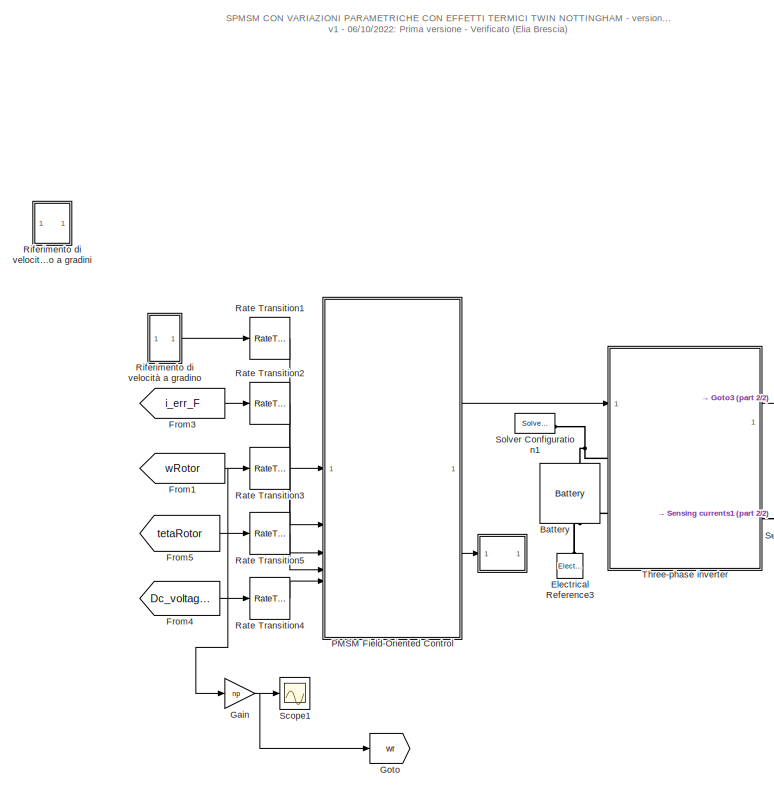
[diagram: root canvas - part 1/2, left side, full height]
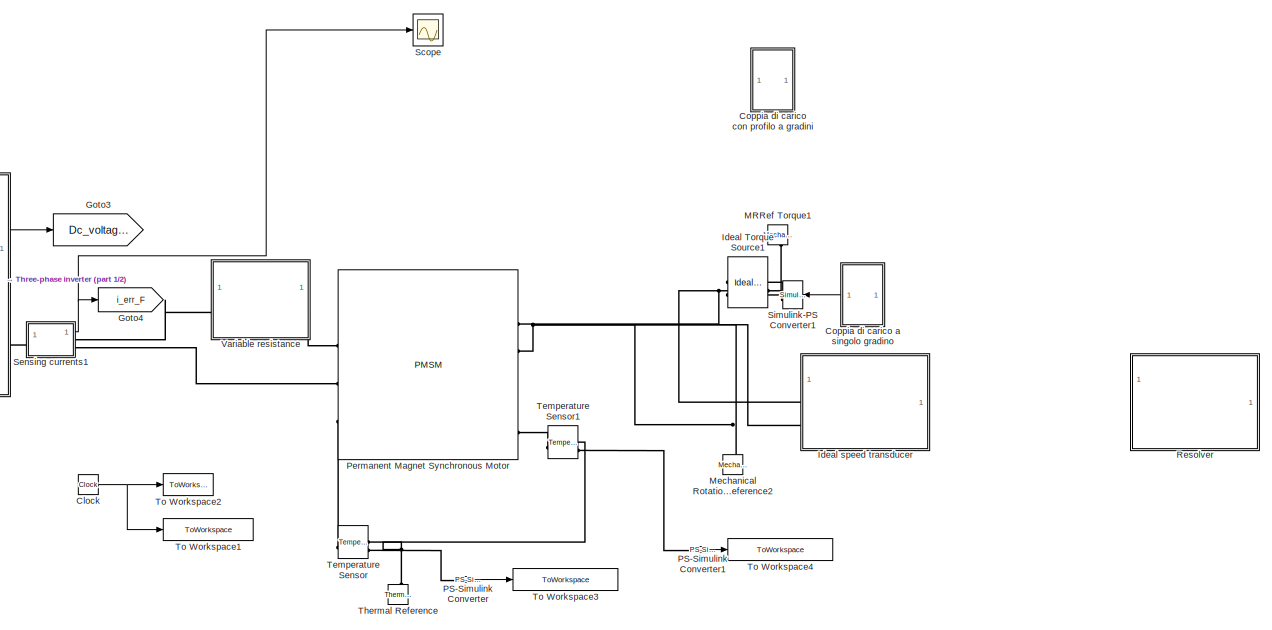
[diagram: root canvas - part 2/2, right side, full height]
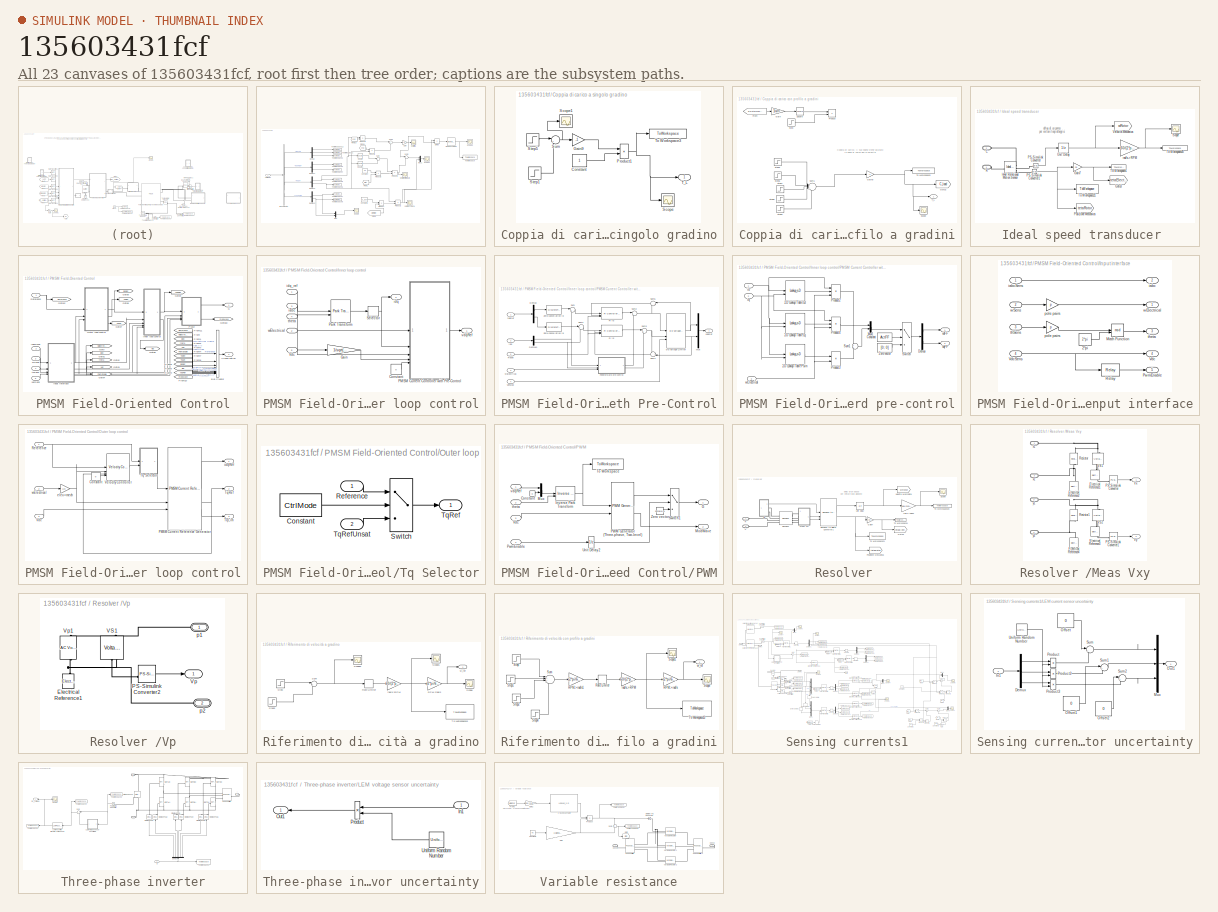
[diagram: thumbnail index - all 23 canvases of the model, root first then tree order]
MODEL mdl_135603431fcf
KIND model
CONFIG AbsTol = auto
CONFIG EnableMultiTasking = on
CONFIG FixedStep = fixed_step_size
CONFIG MaxStep = auto
CONFIG MinStep = auto
CONFIG RelTol = 1e-4
CONFIG SampleTimeConstraint = Unconstrained
CONFIG SolverName = ode45
CONFIG StartTime = 0.0
CONFIG StopTime = 0.1
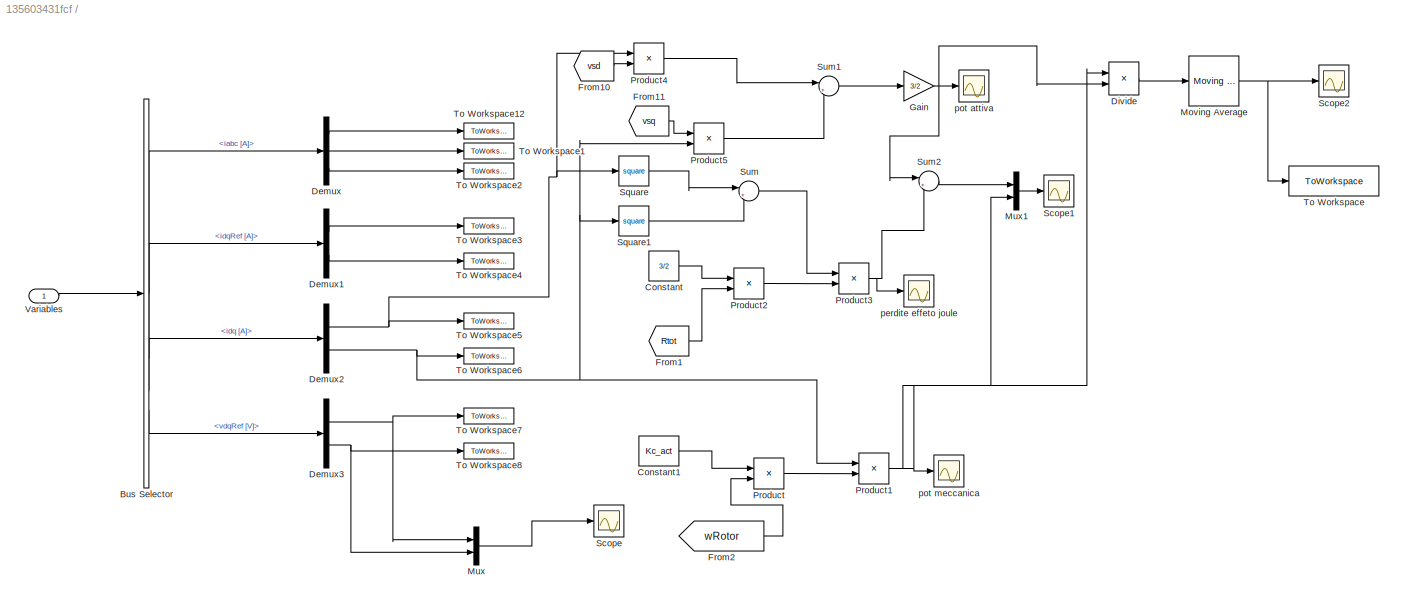
BLOCK [SubSystem]  
BLOCK [BusSelector]  /Bus Selector
  OutputSignals = iabc [A],idqRef [A],idq [A],vdqRef [V]
BLOCK [Constant]  /Constant
  Value = 3/2
BLOCK [Constant]  /Constant1
  Value = Kc_act
BLOCK [Demux]  /Demux
  Outputs = 3
BLOCK [Demux]  /Demux1
  Outputs = 2
BLOCK [Demux]  /Demux2
  Outputs = 2
BLOCK [Demux]  /Demux3
  Outputs = 2
BLOCK [Product]  /Divide
  Inputs = */
BLOCK [From]  /From1
  GotoTag = Rtot
  TagVisibility = global
BLOCK [From]  /From10
  GotoTag = vsd
  TagVisibility = global
BLOCK [From]  /From11
  GotoTag = vsq
  TagVisibility = global
BLOCK [From]  /From2
  GotoTag = wRotor
  TagVisibility = global
BLOCK [Gain]  /Gain
  Gain = 3/2
BLOCK [Reference]  /Moving Average  REF=dspstat3/Moving
Average
  SourceBlock = dspstat3/Moving\nAverage
  SourceType = dsp.simulink.MovingAverage
BLOCK [Mux]  /Mux
  DisplayOption = bar
  Inputs = 2
BLOCK [Mux]  /Mux1
  DisplayOption = bar
  Inputs = 2
BLOCK [Product]  /Product
BLOCK [Product]  /Product1
BLOCK [Product]  /Product2
BLOCK [Product]  /Product3
BLOCK [Product]  /Product4
BLOCK [Product]  /Product5
BLOCK [Scope]  /Scope
  DataLoggingVariableName = ScopeData3
  Floating = off
  GraphicalSettings = {"GraphicalSettings":{"LegacySettings":true,"Style":{"Style":{"CurrentConfiguration":"extmgr.ConfigurationSet","MinimizeControls":"false","PlotType":"Auto","Version":"2024b"}}}}
  NumInputPorts = 1
  WasSavedAsWebScope = on
BLOCK [Scope]  /Scope1
  ActiveDisplayYMaximum = 1084.99872
  ActiveDisplayYMinimum = -1207.96176
  DataLoggingVariableName = ScopeData5
  Floating = off
  GraphicalSettings = {"GraphicalSettings":{"LegacySettings":true,"Style":{"AxesScalingProperties":{"ScaleAxesLimitsAtStop":false},"Style":{"AxesColor":"[0 0 0]","ChannelNames":[""],"ColorOrder":"[1 0.909803921568627 0.392156862745098;0.149019607843137 0.549019607843137 0.866666666666667;0.96078431372549 0.466666666666667 0.16078431372549;0.286274509803922 0.858823529411765 0.250980392156863;0.752941176470588 0.3607843...<+557ch>
  MultipleDisplayCache = [{"MaxYLimMag":1207.96176,"MaxYLimReal":1084.99872,"MinYLimMag":0,"MinYLimReal":-1207.96176,"PlotAsMagnitudePhase":false,"ShowGrid":true,"ShowLegend":false,"Title":"%<SignalLabel>","YLabel":""}]
  NumInputPorts = 1
  WasSavedAsWebScope = on
BLOCK [Scope]  /Scope2
  ActiveDisplayYMaximum = 1.42984
  ActiveDisplayYMinimum = -0.32599
  DataLoggingVariableName = ScopeData1
  Floating = off
  GraphicalSettings = {"GraphicalSettings":{"LegacySettings":true,"Style":{"AxesScalingProperties":{"ScaleAxesLimitsAtStop":false},"Style":{"AxesColor":"[0 0 0]","ChannelNames":[""],"ColorOrder":"[1 0.909803921568627 0.392156862745098;0.149019607843137 0.549019607843137 0.866666666666667;0.96078431372549 0.466666666666667 0.16078431372549;0.286274509803922 0.858823529411765 0.250980392156863;0.752941176470588 0.3607843...<+513ch>
  MultipleDisplayCache = [{"MaxYLimMag":1.42984,"MaxYLimReal":1.42984,"MinYLimMag":0,"MinYLimReal":-0.32599,"PlotAsMagnitudePhase":false,"ShowGrid":true,"ShowLegend":false,"Title":"%<SignalLabel>","YLabel":""}]
  NumInputPorts = 1
  WasSavedAsWebScope = on
BLOCK [Math]  /Square
  Operator = square
BLOCK [Math]  /Square1
  Operator = square
BLOCK [Sum]  /Sum
  Inputs = |++
BLOCK [Sum]  /Sum1
  Inputs = |++
BLOCK [Sum]  /Sum2
  Inputs = |+-
BLOCK [ToWorkspace]  /To Workspace
  FixptAsFi = on
  MaxDataPoints = inf
  SampleTime = -1
  SaveFormat = Timeseries
  VariableName = efficienza1
BLOCK [ToWorkspace]  /To Workspace1
  MaxDataPoints = inf
  NameLocation = top
  SampleTime = -1
  VariableName = iB
BLOCK [ToWorkspace]  /To Workspace12
  MaxDataPoints = inf
  NameLocation = top
  SampleTime = -1
  VariableName = iA
BLOCK [ToWorkspace]  /To Workspace2
  MaxDataPoints = inf
  NameLocation = top
  SampleTime = -1
  VariableName = iC
BLOCK [ToWorkspace]  /To Workspace3
  MaxDataPoints = inf
  NameLocation = top
  SampleTime = -1
  VariableName = idRef
BLOCK [ToWorkspace]  /To Workspace4
  MaxDataPoints = inf
  NameLocation = top
  SampleTime = -1
  VariableName = iqRef
BLOCK [ToWorkspace]  /To Workspace5
  MaxDataPoints = inf
  NameLocation = top
  SampleTime = -1
  VariableName = id
BLOCK [ToWorkspace]  /To Workspace6
  MaxDataPoints = inf
  NameLocation = top
  SampleTime = -1
  VariableName = iq
BLOCK [ToWorkspace]  /To Workspace7
  MaxDataPoints = inf
  NameLocation = top
  SampleTime = -1
  VariableName = vdRef
BLOCK [ToWorkspace]  /To Workspace8
  MaxDataPoints = inf
  NameLocation = top
  SampleTime = -1
  VariableName = vqRef
BLOCK [Inport]  /Variables
BLOCK [Scope]  /perdite effeto joule
  ActiveDisplayYMaximum = 1493.50314
  ActiveDisplayYMinimum = -165.94479
  DataLoggingVariableName = ScopeData3
  Floating = off
  GraphicalSettings = {"GraphicalSettings":{"LegacySettings":true,"Style":{"Style":{"AxesColor":"[0 0 0]","ChannelNames":[""],"ColorOrder":"[1 0.909803921568627 0.392156862745098;0.149019607843137 0.549019607843137 0.866666666666667;0.96078431372549 0.466666666666667 0.16078431372549;0.286274509803922 0.858823529411765 0.250980392156863;0.752941176470588 0.36078431372549 0.984313725490196;0.423529411764706 0.9568627450...<+466ch>
  MultipleDisplayCache = [{"MaxYLimMag":1493.50314,"MaxYLimReal":1493.50314,"MinYLimMag":0,"MinYLimReal":-165.94479,"PlotAsMagnitudePhase":false,"ShowGrid":true,"ShowLegend":false,"Title":"%<SignalLabel>","YLabel":""}]
  NumInputPorts = 1
  WasSavedAsWebScope = on
BLOCK [Scope]  /pot attiva
  ActiveDisplayYMaximum = 23.6103
  ActiveDisplayYMinimum = -43.8897
  DataLoggingVariableName = ScopeData4
  Floating = off
  GraphicalSettings = {"GraphicalSettings":{"LegacySettings":true,"Style":{"AxesScalingProperties":{"ScaleAxesLimitsAtStop":false},"Style":{"AxesColor":"[0 0 0]","ChannelNames":[""],"ColorOrder":"[1 0.909803921568627 0.392156862745098;0.149019607843137 0.549019607843137 0.866666666666667;0.96078431372549 0.466666666666667 0.16078431372549;0.286274509803922 0.858823529411765 0.250980392156863;0.752941176470588 0.3607843...<+548ch>
  MultipleDisplayCache = [{"MaxYLimMag":43.8897,"MaxYLimReal":23.6103,"MinYLimMag":0,"MinYLimReal":-43.8897,"PlotAsMagnitudePhase":false,"ShowGrid":true,"ShowLegend":false,"Title":"%<SignalLabel>","YLabel":""}]
  NumInputPorts = 1
  WasSavedAsWebScope = on
BLOCK [Scope]  /pot meccanica
  ActiveDisplayYMaximum = 1435.3383
  ActiveDisplayYMinimum = -1230.25123
  DataLoggingVariableName = ScopeData2
  Floating = off
  GraphicalSettings = {"GraphicalSettings":{"LegacySettings":true,"Style":{"Style":{"AxesColor":"[0 0 0]","ChannelNames":[""],"ColorOrder":"[1 0.909803921568627 0.392156862745098;0.149019607843137 0.549019607843137 0.866666666666667;0.96078431372549 0.466666666666667 0.16078431372549;0.286274509803922 0.858823529411765 0.250980392156863;0.752941176470588 0.36078431372549 0.984313725490196;0.423529411764706 0.9568627450...<+432ch>
  MultipleDisplayCache = [{"MaxYLimMag":1435.3383,"MaxYLimReal":1435.3383,"MinYLimMag":0,"MinYLimReal":-1230.25123,"PlotAsMagnitudePhase":false,"ShowGrid":true,"ShowLegend":false,"Title":"%<SignalLabel>","YLabel":""}]
  NumInputPorts = 1
  WasSavedAsWebScope = on
BLOCK [Reference] Battery  REF=batteryecm_lib/Battery
  LibrarySourceBlock = ee_lib/Sources/Battery
  NameLocation = right
  SourceBlock = batteryecm_lib/Battery
  SourceType = Battery
BLOCK [Clock] Clock
  Decimation = 1
BLOCK [SubSystem] Coppia di carico a singolo gradino
  NameLocation = top
BLOCK [Constant] Coppia di carico a singolo gradino/Constant
BLOCK [Gain] Coppia di carico a singolo gradino/Gain9
  Gain = -1
BLOCK [Product] Coppia di carico a singolo gradino/Product1
  InputSameDT = on
  NameLocation = top
  OutDataTypeStr = Inherit: Same as first input
  SaturateOnIntegerOverflow = on
BLOCK [Scope] Coppia di carico a singolo gradino/Scope
  ActiveDisplayYMaximum = 0.1
  ActiveDisplayYMinimum = -0.9
  DataLoggingVariableName = ScopeData2
  Floating = off
  GraphicalSettings = {"GraphicalSettings":{"LegacySettings":true,"Style":{"Style":{"AxesColor":"[0 0 0]","ChannelNames":[""],"ColorOrder":"[1 1 0.0666666666666667;0.0745098039215686 0.623529411764706 1;1 0.411764705882353 0.16078431372549;0.392156862745098 0.831372549019608 0.0745098039215686;0.717647058823529 0.274509803921569 1;0.0588235294117647 1 1;1 0.0745098039215686 0.650980392156863]","CurrentConfiguration":"e...<+424ch>
  MultipleDisplayCache = [{"MaxYLimMag":0.9,"MaxYLimReal":0.1,"MinYLimMag":0,"MinYLimReal":-0.9,"PlotAsMagnitudePhase":false,"ShowGrid":true,"ShowLegend":false,"Title":"%<SignalLabel>","YLabel":""}]
  NumInputPorts = 1
  WasSavedAsWebScope = on
BLOCK [Scope] Coppia di carico a singolo gradino/Scope1
  ActiveDisplayYMaximum = 0.225
  ActiveDisplayYMinimum = -0.025
  DataLoggingVariableName = ScopeData1
  Floating = off
  GraphicalSettings = {"GraphicalSettings":{"LegacySettings":true,"Style":{"Style":{"AxesColor":"[0 0 0]","ChannelNames":[""],"ColorOrder":"[1 0.909803921568627 0.392156862745098;0.149019607843137 0.549019607843137 0.866666666666667;0.96078431372549 0.466666666666667 0.16078431372549;0.286274509803922 0.858823529411765 0.250980392156863;0.752941176470588 0.36078431372549 0.984313725490196;0.423529411764706 0.9568627450...<+464ch>
  MultipleDisplayCache = [{"MaxYLimMag":0.225,"MaxYLimReal":0.225,"MinYLimMag":0,"MinYLimReal":-0.025,"PlotAsMagnitudePhase":false,"ShowGrid":true,"ShowLegend":false,"Title":"%<SignalLabel>","YLabel":""}]
  NumInputPorts = 1
  WasSavedAsWebScope = on
BLOCK [Step] Coppia di carico a singolo gradino/Step1
  After = 0.4
  SampleTime = 0
  Time = 0.32
BLOCK [Step] Coppia di carico a singolo gradino/Step5
  After = 0.2
  SampleTime = 0
  Time = 0.12
BLOCK [Sum] Coppia di carico a singolo gradino/Sum
  Inputs = |++
BLOCK [Outport] Coppia di carico a singolo gradino/T_L
BLOCK [ToWorkspace] Coppia di carico a singolo gradino/To Workspace3
  MaxDataPoints = inf
  SampleTime = TT_sc
  VariableName = C_load
BLOCK [SubSystem] Coppia di carico con profilo a gradini
  Commented = on
  NameLocation = top
BLOCK [From] Coppia di carico con profilo a gradini/From
  GotoTag = wRotorMecc_RPM
BLOCK [Gain] Coppia di carico con profilo a gradini/Gain
  Gain = 1/wrn
BLOCK [Gain] Coppia di carico con profilo a gradini/Gain9
  Gain = -1
BLOCK [Goto] Coppia di carico con profilo a gradini/Goto2
  GotoTag = C_load
  TagVisibility = global
BLOCK [Product] Coppia di carico con profilo a gradini/Product
BLOCK [Scope] Coppia di carico con profilo a gradini/Scope
  ActiveDisplayYMaximum = 0.2
  ActiveDisplayYMinimum = -1.8
  DataLoggingVariableName = ScopeData2
  Floating = off
  GraphicalSettings = {"GraphicalSettings":{"LegacySettings":true,"Style":{"Style":{"AxesColor":"[0 0 0]","ChannelNames":[""],"ColorOrder":"[1 1 0.0666666666666667;0.0745098039215686 0.623529411764706 1;1 0.411764705882353 0.16078431372549;0.392156862745098 0.831372549019608 0.0745098039215686;0.717647058823529 0.274509803921569 1;0.0588235294117647 1 1;1 0.0745098039215686 0.650980392156863]","CurrentConfiguration":"e...<+368ch>  <repeated x3 — deduplicated; at blocks: Scope, Scope1>
  MultipleDisplayCache = [{"MaxYLimMag":1.8,"MaxYLimReal":0.2,"MinYLimMag":0,"MinYLimReal":-1.8,"PlotAsMagnitudePhase":false,"ShowGrid":true,"ShowLegend":false,"Title":"%<SignalLabel>","YLabel":""}]
  NumInputPorts = 1
  WasSavedAsWebScope = on
  WindowPosition = [1 41 1920 963]
BLOCK [Math] Coppia di carico con profilo a gradini/Square
  Operator = square
BLOCK [Step] Coppia di carico con profilo a gradini/Step
  After = Crn
  SampleTime = 0
  Time = 0
BLOCK [Step] Coppia di carico con profilo a gradini/Step5
  After = Cr/2
  SampleTime = 0
  Time = 0.2
BLOCK [Step] Coppia di carico con profilo a gradini/Step6
  After = Cr*0.4
  SampleTime = 0
  Time = 2.2
BLOCK [Step] Coppia di carico con profilo a gradini/Step7
  After = Cr*0.4
  SampleTime = 0
  Time = 3.7
BLOCK [Step] Coppia di carico con profilo a gradini/Step8
  After = Cr/2
  SampleTime = 0
  Time = 3.8
BLOCK [Step] Coppia di carico con profilo a gradini/Step9
  After = Cr
  SampleTime = 0
  Time = 5.6
BLOCK [Sum] Coppia di carico con profilo a gradini/Sum1
  Inputs = |+-++-
BLOCK [Outport] Coppia di carico con profilo a gradini/T_L
BLOCK [ToWorkspace] Coppia di carico con profilo a gradini/To Workspace3
  MaxDataPoints = inf
  SampleTime = TT_sc
  VariableName = C_load
BLOCK [Reference] Electrical Reference3  REF=fl_lib/Electrical/Electrical Elements/Electrical Reference
  NameLocation = right
  SourceBlock = fl_lib/Electrical/Electrical Elements/Electrical Reference
  SourceType = Electrical Reference
BLOCK [From] From1
  GotoTag = wRotor
  TagVisibility = global
BLOCK [From] From3
  GotoTag = i_err_F
  TagVisibility = global
BLOCK [From] From4
  GotoTag = Dc_voltage_err
BLOCK [From] From5
  GotoTag = tetaRotor
  TagVisibility = global
BLOCK [Gain] Gain
  Gain = np
BLOCK [Goto] Goto
  GotoTag = wr
  TagVisibility = global
BLOCK [Goto] Goto3
  GotoTag = Dc_voltage_err
BLOCK [Goto] Goto4
  GotoTag = i_err_F
  TagVisibility = global
BLOCK [Reference] Ideal Torque Source1  REF=fl_lib/Mechanical/Mechanical Sources/Ideal Torque Source
  NameLocation = top
  SourceBlock = fl_lib/Mechanical/Mechanical Sources/Ideal Torque Source
  SourceType = Ideal Torque Source
BLOCK [SubSystem] Ideal speed transducer 
BLOCK [PMIOPort] Ideal speed transducer /C
  Port = 2
  Side = Left
BLOCK [Gain] Ideal speed transducer /Gain7
  Gain = np
BLOCK [Goto] Ideal speed transducer /Goto3
  GotoTag = tetaElectric
  TagVisibility = global
BLOCK [Reference] Ideal speed transducer /Ideal Rotational Motion Sensor  REF=fl_lib/Mechanical/Mechanical Sensors/Ideal Rotational
Motion Sensor
  SourceBlock = fl_lib/Mechanical/Mechanical Sensors/Ideal Rotational\nMotion Sensor
  SourceType = Ideal Rotational\nMotion Sensor
BLOCK [Reference] Ideal speed transducer /PS-Simulink Converter  REF=nesl_utility/PS-Simulink
Converter
  SourceBlock = nesl_utility/PS-Simulink\nConverter
  SourceType = PS-Simulink\nConverter
BLOCK [Reference] Ideal speed transducer /PS-Simulink Converter1  REF=nesl_utility/PS-Simulink
Converter
  SourceBlock = nesl_utility/PS-Simulink\nConverter
  SourceType = PS-Simulink\nConverter
BLOCK [Goto] Ideal speed transducer /Posizione Meccanica
  GotoTag = tetaRotor
  TagVisibility = global
BLOCK [PMIOPort] Ideal speed transducer /R
  Side = Left
BLOCK [Scope] Ideal speed transducer /Scope
  ActiveDisplayYMaximum = 1716.67858
  ActiveDisplayYMinimum = -190.74206
  DataLoggingVariableName = ScopeData1
  Floating = off
  GraphicalSettings = {"GraphicalSettings":{"LegacySettings":true,"Style":{"AxesScalingProperties":{"AutoScaleXAxisLimits":true,"ScaleAxesLimitsAtStop":false},"Style":{"AxesColor":"[0 0 0]","ChannelNames":[""],"ColorOrder":"[1 1 0.0666666666666667;0.0745098039215686 0.623529411764706 1;1 0.411764705882353 0.16078431372549;0.392156862745098 0.831372549019608 0.0745098039215686;0.717647058823529 0.274509803921569 1;0.058...<+456ch>
  MultipleDisplayCache = [{"MaxYLimMag":1716.67858,"MaxYLimReal":1716.67858,"MinYLimMag":0,"MinYLimReal":-190.74206,"PlotAsMagnitudePhase":false,"ShowGrid":true,"ShowLegend":false,"Title":"%<SignalLabel>","YLabel":""}]
  NumInputPorts = 1
  WasSavedAsWebScope = on
  WindowPosition = [1 41 1920 963]
BLOCK [ToWorkspace] Ideal speed transducer /To Workspace1
  MaxDataPoints = inf
  NameLocation = top
  SampleTime = -1
  VariableName = tetaElectric
BLOCK [ToWorkspace] Ideal speed transducer /To Workspace20
  MaxDataPoints = inf
  NameLocation = top
  SampleTime = TT_sc
  VariableName = wRotorMecc_RPM
BLOCK [ToWorkspace] Ideal speed transducer /To Workspace21
  MaxDataPoints = inf
  NameLocation = top
  SampleTime = TT_sc
  VariableName = tetaRotor
BLOCK [UnitDelay] Ideal speed transducer /Unit Delay
  HasFrameUpgradeWarning = on
  SampleTime = -1
BLOCK [Goto] Ideal speed transducer /Velocità Meccanica
  GotoTag = wRotor
  TagVisibility = global
BLOCK [Gain] Ideal speed transducer /rad//s->RPM
  Gain = 60/(2*pi)
BLOCK [Reference] MRRef Torque1  REF=fl_lib/Mechanical/Rotational Elements/Mechanical
Rotational Reference
  NameLocation = right
  SourceBlock = fl_lib/Mechanical/Rotational Elements/Mechanical\nRotational Reference
  SourceType = Mechanical\nRotational Reference
BLOCK [Reference] Mechanical Rotational Reference2  REF=fl_lib/Mechanical/Rotational Elements/Mechanical
Rotational Reference
  NameLocation = right
  SourceBlock = fl_lib/Mechanical/Rotational Elements/Mechanical\nRotational Reference
  SourceType = Mechanical\nRotational Reference
BLOCK [SubSystem] PMSM Field-Oriented Control
  AncestorBlock = eePmsmFieldOrientedControl/PMSM Field-Oriented\nControl
  CloseFcn = ee_sli_rtmsupport( 'closefcn', gcbh );
  CopyFcn = ee_sli_rtmsupport( 'copyfcn', gcbh );
  DeleteFcn = ee_sli_rtmsupport( 'deletefcn', gcbh );
  LoadFcn = ee_sli_rtmsupport( 'loadfcn', gcbh );
  ModelCloseFcn = ee_sli_rtmsupport( 'modelclosefcn', gcbh );
  OpenFcn = ee_sli_rtmsupport( 'openfcn', gcbh );
  PostSaveFcn = ee_sli_rtmsupport( 'postsavefcn', gcbh );
  PreCopyFcn = ee_sli_rtmsupport( 'precopyfcn', gcbh );
  PreDeleteFcn = ee_sli_rtmsupport( 'predeletefcn', gcbh );
BLOCK [BusCreator] PMSM Field-Oriented Control/Bus Creator
  DisplayOption = bar
  InheritFromInputs = on
  Inputs = 12
BLOCK [From] PMSM Field-Oriented Control/From
  GotoTag = wElectrical
BLOCK [From] PMSM Field-Oriented Control/From1
  GotoTag = iabc
BLOCK [From] PMSM Field-Oriented Control/From10
  GotoTag = modWave
BLOCK [From] PMSM Field-Oriented Control/From11
  GotoTag = Reference
BLOCK [From] PMSM Field-Oriented Control/From2
  GotoTag = theta
BLOCK [From] PMSM Field-Oriented Control/From3
  GotoTag = Vdc
BLOCK [From] PMSM Field-Oriented Control/From4
  GotoTag = PwmEnable
BLOCK [From] PMSM Field-Oriented Control/From5
  GotoTag = idqRef
BLOCK [From] PMSM Field-Oriented Control/From6
  GotoTag = idq
BLOCK [From] PMSM Field-Oriented Control/From7
  GotoTag = TqRef
BLOCK [From] PMSM Field-Oriented Control/From8
  GotoTag = TqLim
BLOCK [From] PMSM Field-Oriented Control/From9
  GotoTag = vdqRef
BLOCK [Outport] PMSM Field-Oriented Control/G
  VectorParamsAs1DForOutWhenUnconnected = off
BLOCK [Goto] PMSM Field-Oriented Control/Goto
  GotoTag = wElectrical
BLOCK [Goto] PMSM Field-Oriented Control/Goto1
  GotoTag = iabc
BLOCK [Goto] PMSM Field-Oriented Control/Goto10
  GotoTag = modWave
BLOCK [Goto] PMSM Field-Oriented Control/Goto12
  GotoTag = Reference
BLOCK [Goto] PMSM Field-Oriented Control/Goto2
  GotoTag = theta
BLOCK [Goto] PMSM Field-Oriented Control/Goto3
  GotoTag = Vdc
BLOCK [Goto] PMSM Field-Oriented Control/Goto4
  GotoTag = PwmEnable
BLOCK [Goto] PMSM Field-Oriented Control/Goto5
  GotoTag = idqRef
BLOCK [Goto] PMSM Field-Oriented Control/Goto6
  GotoTag = TqRef
BLOCK [Goto] PMSM Field-Oriented Control/Goto7
  GotoTag = TqLim
BLOCK [Goto] PMSM Field-Oriented Control/Goto8
  GotoTag = idq
BLOCK [Goto] PMSM Field-Oriented Control/Goto9
  GotoTag = vdqRef
BLOCK [SubSystem] PMSM Field-Oriented Control/Inner loop control
BLOCK [Constant] PMSM Field-Oriented Control/Inner loop control/Constant
  SampleTime = -1
  Value = 0
BLOCK [Gain] PMSM Field-Oriented Control/Inner loop control/Gain
  Gain = 1/sqrt(3)
BLOCK [SubSystem] PMSM Field-Oriented Control/Inner loop control/PMSM Current Controller with Pre-Control
  AncestorBlock = eePmsmCurrentController/PMSM Current Controller\nwith Pre-Control
  CloseFcn = ee_sli_rtmsupport( 'closefcn', gcbh );
  CopyFcn = ee_sli_rtmsupport( 'copyfcn', gcbh );
  DeleteFcn = ee_sli_rtmsupport( 'deletefcn', gcbh );
  LoadFcn = ee_sli_rtmsupport( 'loadfcn', gcbh );
  ModelCloseFcn = ee_sli_rtmsupport( 'modelclosefcn', gcbh );
  OpenFcn = ee_sli_rtmsupport( 'openfcn', gcbh );
  PostSaveFcn = ee_sli_rtmsupport( 'postsavefcn', gcbh );
  PreCopyFcn = ee_sli_rtmsupport( 'precopyfcn', gcbh );
  PreDeleteFcn = ee_sli_rtmsupport( 'predeletefcn', gcbh );
BLOCK [Demux] PMSM Field-Oriented Control/Inner loop control/PMSM Current Controller with Pre-Control/Demux
  Outputs = 2
BLOCK [Demux] PMSM Field-Oriented Control/Inner loop control/PMSM Current Controller with Pre-Control/Demux1
  Outputs = 2
BLOCK [SubSystem] PMSM Field-Oriented Control/Inner loop control/PMSM Current Controller with Pre-Control/Feedforward pre-control
BLOCK [Lookup_n-D] PMSM Field-Oriented Control/Inner loop control/PMSM Current Controller with Pre-Control/Feedforward pre-control/2-D Lookup Table Ld
  BreakpointsForDimension1 = idVect
  BreakpointsForDimension2 = iqVect
  ExtrapMethod = Clip
  InputPortMap = u0,u1
  InternalRulePriority = Speed
  RndMeth = Simplest
  Table = LdMatrix
  UseLastTableValue = on
BLOCK [Lookup_n-D] PMSM Field-Oriented Control/Inner loop control/PMSM Current Controller with Pre-Control/Feedforward pre-control/2-D Lookup Table Lq
  BreakpointsForDimension1 = idVect
  BreakpointsForDimension2 = iqVect
  ExtrapMethod = Clip
  InputPortMap = u0,u1
  InternalRulePriority = Speed
  RndMeth = Simplest
  Table = LqMatrix
BLOCK [Lookup_n-D] PMSM Field-Oriented Control/Inner loop control/PMSM Current Controller with Pre-Control/Feedforward pre-control/2-D Lookup Table Psim
  BreakpointsForDimension1 = idVect
  BreakpointsForDimension2 = iqVect
  ExtrapMethod = Clip
  InputPortMap = u0,u1
  InternalRulePriority = Speed
  RndMeth = Simplest
  Table = psimMatrix
BLOCK [Constant] PMSM Field-Oriented Control/Inner loop control/PMSM Current Controller with Pre-Control/Feedforward pre-control/Constant
  SampleTime = Ts
  Value = ActFF
BLOCK [Demux] PMSM Field-Oriented Control/Inner loop control/PMSM Current Controller with Pre-Control/Feedforward pre-control/Demux
  Outputs = 2
BLOCK [Mux] PMSM Field-Oriented Control/Inner loop control/PMSM Current Controller with Pre-Control/Feedforward pre-control/Mux1
  DisplayOption = bar
  Inputs = 2
BLOCK [Product] PMSM Field-Oriented Control/Inner loop control/PMSM Current Controller with Pre-Control/Feedforward pre-control/Product2
  Inputs = 3
BLOCK [Product] PMSM Field-Oriented Control/Inner loop control/PMSM Current Controller with Pre-Control/Feedforward pre-control/Product3
BLOCK [Product] PMSM Field-Oriented Control/Inner loop control/PMSM Current Controller with Pre-Control/Feedforward pre-control/Product4
  Inputs = 3
BLOCK [Sum] PMSM Field-Oriented Control/Inner loop control/PMSM Current Controller with Pre-Control/Feedforward pre-control/Sum1
BLOCK [Switch] PMSM Field-Oriented Control/Inner loop control/PMSM Current Controller with Pre-Control/Feedforward pre-control/Switch
  Criteria = u2 > Threshold
  InputSameDT = off
  SaturateOnIntegerOverflow = off
BLOCK [Constant] PMSM Field-Oriented Control/Inner loop control/PMSM Current Controller with Pre-Control/Feedforward pre-control/Zero vector
  SampleTime = Ts
  Value = [0; 0]
BLOCK [Inport] PMSM Field-Oriented Control/Inner loop control/PMSM Current Controller with Pre-Control/Feedforward pre-control/id
BLOCK [Inport] PMSM Field-Oriented Control/Inner loop control/PMSM Current Controller with Pre-Control/Feedforward pre-control/iq
  Port = 2
BLOCK [Outport] PMSM Field-Oriented Control/Inner loop control/PMSM Current Controller with Pre-Control/Feedforward pre-control/vdFF
  VectorParamsAs1DForOutWhenUnconnected = off
BLOCK [Outport] PMSM Field-Oriented Control/Inner loop control/PMSM Current Controller with Pre-Control/Feedforward pre-control/vqFF
  Port = 2
  VectorParamsAs1DForOutWhenUnconnected = off
BLOCK [Inport] PMSM Field-Oriented Control/Inner loop control/PMSM Current Controller with Pre-Control/Feedforward pre-control/wElectrical
  Port = 3
BLOCK [Mux] PMSM Field-Oriented Control/Inner loop control/PMSM Current Controller with Pre-Control/Mux
  DisplayOption = bar
  Inputs = 2
BLOCK [Reference] PMSM Field-Oriented Control/Inner loop control/PMSM Current Controller with Pre-Control/PI id  REF=eeDiscretePi/PI Controller
(Discrete or Continuous)
  SourceBlock = eeDiscretePi/PI Controller\n(Discrete or Continuous)
  SourceType = PI Controller (Discrete or Continuous)
BLOCK [Reference] PMSM Field-Oriented Control/Inner loop control/PMSM Current Controller with Pre-Control/PI iq  REF=eeDiscretePi/PI Controller
(Discrete or Continuous)
  SourceBlock = eeDiscretePi/PI Controller\n(Discrete or Continuous)
  SourceType = PI Controller (Discrete or Continuous)
BLOCK [Inport] PMSM Field-Oriented Control/Inner loop control/PMSM Current Controller with Pre-Control/Reset
  Port = 5
  SampleTime = Ts
BLOCK [Sum] PMSM Field-Oriented Control/Inner loop control/PMSM Current Controller with Pre-Control/Sum
  Inputs = |+-
BLOCK [Sum] PMSM Field-Oriented Control/Inner loop control/PMSM Current Controller with Pre-Control/Sum1
  Inputs = |+-
BLOCK [Sum] PMSM Field-Oriented Control/Inner loop control/PMSM Current Controller with Pre-Control/Sum2
  Inputs = |+-
BLOCK [Sum] PMSM Field-Oriented Control/Inner loop control/PMSM Current Controller with Pre-Control/Sum3
  Inputs = |++
BLOCK [Sum] PMSM Field-Oriented Control/Inner loop control/PMSM Current Controller with Pre-Control/Sum4
  Inputs = -+|
BLOCK [Sum] PMSM Field-Oriented Control/Inner loop control/PMSM Current Controller with Pre-Control/Sum5
  Inputs = |+-
BLOCK [Inport] PMSM Field-Oriented Control/Inner loop control/PMSM Current Controller with Pre-Control/VphMax
  Port = 4
  SampleTime = Ts
BLOCK [DiscreteTransferFcn] PMSM Field-Oriented Control/Inner loop control/PMSM Current Controller with Pre-Control/Zero-cancellation id
  Denominator = denZC_id
  InputPortMap = u0
  Numerator = numZC_id
  SampleTime = Ts
BLOCK [DiscreteTransferFcn] PMSM Field-Oriented Control/Inner loop control/PMSM Current Controller with Pre-Control/Zero-cancellation iq
  Denominator = denZC_iq
  InputPortMap = u0
  Numerator = numZC_iq
  SampleTime = Ts
BLOCK [Reference] PMSM Field-Oriented Control/Inner loop control/PMSM Current Controller with Pre-Control/d-q Voltage Limiter  REF=eeDqVoltageLimiter/d-q Voltage Limiter
  SourceBlock = eeDqVoltageLimiter/d-q Voltage Limiter
  SourceType = d-q Voltage Limiter
BLOCK [Inport] PMSM Field-Oriented Control/Inner loop control/PMSM Current Controller with Pre-Control/idq
  Port = 2
  SampleTime = Ts
BLOCK [Inport] PMSM Field-Oriented Control/Inner loop control/PMSM Current Controller with Pre-Control/idqRef
  SampleTime = Ts
BLOCK [Outport] PMSM Field-Oriented Control/Inner loop control/PMSM Current Controller with Pre-Control/vdqRef
  VectorParamsAs1DForOutWhenUnconnected = off
BLOCK [Inport] PMSM Field-Oriented Control/Inner loop control/PMSM Current Controller with Pre-Control/wElectrical
  Port = 3
  SampleTime = Ts
BLOCK [Reference] PMSM Field-Oriented Control/Inner loop control/Park Transform  REF=eeTransforms/Park Transform
  SourceBlock = eeTransforms/Park Transform
  SourceType = Park Transform
BLOCK [Selector] PMSM Field-Oriented Control/Inner loop control/Selector
  IndexOptions = Index vector (dialog)
  Indices = [1 2]
  InputPortWidth = 3
  OutputSizes = 1
BLOCK [Inport] PMSM Field-Oriented Control/Inner loop control/Vdc
  Port = 5
BLOCK [Inport] PMSM Field-Oriented Control/Inner loop control/iabc
  Port = 3
BLOCK [Outport] PMSM Field-Oriented Control/Inner loop control/idq
  Port = 2
  VectorParamsAs1DForOutWhenUnconnected = off
BLOCK [Inport] PMSM Field-Oriented Control/Inner loop control/idq_ref
BLOCK [Inport] PMSM Field-Oriented Control/Inner loop control/theta
  Port = 4
BLOCK [Outport] PMSM Field-Oriented Control/Inner loop control/vdqRef
  VectorParamsAs1DForOutWhenUnconnected = off
BLOCK [Inport] PMSM Field-Oriented Control/Inner loop control/wElectrical
  Port = 2
BLOCK [SubSystem] PMSM Field-Oriented Control/Input interface
BLOCK [Constant] PMSM Field-Oriented Control/Input interface/2*pi
  SampleTime = Tsc
  Value = 2*pi
BLOCK [Math] PMSM Field-Oriented Control/Input interface/Math Function
  Operator = mod
  SignedPower = on
BLOCK [Outport] PMSM Field-Oriented Control/Input interface/PwmEnable
  Port = 5
  VectorParamsAs1DForOutWhenUnconnected = off
BLOCK [Relay] PMSM Field-Oriented Control/Input interface/Relay
  OffSwitchValue = 0.5*Vdc_on
  OnSwitchValue = Vdc_on
BLOCK [Outport] PMSM Field-Oriented Control/Input interface/Vdc
  Port = 4
  VectorParamsAs1DForOutWhenUnconnected = off
BLOCK [Inport] PMSM Field-Oriented Control/Input interface/VdcSens
  Port = 4
BLOCK [Outport] PMSM Field-Oriented Control/Input interface/iabc
  Port = 2
  VectorParamsAs1DForOutWhenUnconnected = off
BLOCK [Inport] PMSM Field-Oriented Control/Input interface/iabcSens
BLOCK [Gain] PMSM Field-Oriented Control/Input interface/pole pairs
  Gain = p
BLOCK [Gain] PMSM Field-Oriented Control/Input interface/pole pairs 
  Gain = p
BLOCK [Inport] PMSM Field-Oriented Control/Input interface/thSens
  Port = 3
BLOCK [Outport] PMSM Field-Oriented Control/Input interface/theta
  Port = 3
  VectorParamsAs1DForOutWhenUnconnected = off
BLOCK [Outport] PMSM Field-Oriented Control/Input interface/wElectrical
  VectorParamsAs1DForOutWhenUnconnected = off
BLOCK [Inport] PMSM Field-Oriented Control/Input interface/wSens
  Port = 2
BLOCK [SubSystem] PMSM Field-Oriented Control/Outer loop control
BLOCK [Constant] PMSM Field-Oriented Control/Outer loop control/Constant
  SampleTime = -1
  Value = 0
BLOCK [Reference] PMSM Field-Oriented Control/Outer loop control/PMSM Current Reference Generator  REF=eePmsmCurrentReferenceGen/PMSM Current Reference
Generator
  SourceBlock = eePmsmCurrentReferenceGen/PMSM Current Reference\nGenerator
  SourceType = PMSM Current Reference Generator
BLOCK [Inport] PMSM Field-Oriented Control/Outer loop control/Reference
BLOCK [SubSystem] PMSM Field-Oriented Control/Outer loop control/Tq Selector
BLOCK [Constant] PMSM Field-Oriented Control/Outer loop control/Tq Selector/Constant
  SampleTime = Tsc
  Value = CtrlMode
BLOCK [Inport] PMSM Field-Oriented Control/Outer loop control/Tq Selector/Reference
BLOCK [Switch] PMSM Field-Oriented Control/Outer loop control/Tq Selector/Switch
  Criteria = u2 > Threshold
  InputSameDT = off
  SaturateOnIntegerOverflow = off
  Threshold = 1.5
BLOCK [Outport] PMSM Field-Oriented Control/Outer loop control/Tq Selector/TqRef
  VectorParamsAs1DForOutWhenUnconnected = off
BLOCK [Inport] PMSM Field-Oriented Control/Outer loop control/Tq Selector/TqRefUnsat
  Port = 2
BLOCK [Outport] PMSM Field-Oriented Control/Outer loop control/TqLim
  Port = 3
  VectorParamsAs1DForOutWhenUnconnected = off
BLOCK [Outport] PMSM Field-Oriented Control/Outer loop control/TqRef
  Port = 2
  VectorParamsAs1DForOutWhenUnconnected = off
BLOCK [Inport] PMSM Field-Oriented Control/Outer loop control/Vdc
  Port = 3
BLOCK [Reference] PMSM Field-Oriented Control/Outer loop control/Velocity Controller  REF=eeVelocityController/Velocity Controller
  SourceBlock = eeVelocityController/Velocity Controller
  SourceType = Velocity Controller
BLOCK [Gain] PMSM Field-Oriented Control/Outer loop control/elec->mech
  Gain = 1/p
BLOCK [Outport] PMSM Field-Oriented Control/Outer loop control/idqRef
  VectorParamsAs1DForOutWhenUnconnected = off
BLOCK [Inport] PMSM Field-Oriented Control/Outer loop control/wElectrical
  Port = 2
BLOCK [SubSystem] PMSM Field-Oriented Control/PWM
BLOCK [Constant] PMSM Field-Oriented Control/PWM/Constant
  SampleTime = Tsc
  Value = 0
BLOCK [Outport] PMSM Field-Oriented Control/PWM/G
  VectorParamsAs1DForOutWhenUnconnected = off
BLOCK [Reference] PMSM Field-Oriented Control/PWM/Inverse Park Transform  REF=eeTransforms/Inverse
Park Transform
  SourceBlock = eeTransforms/Inverse\nPark Transform
  SourceType = Inverse Park Transform
BLOCK [Outport] PMSM Field-Oriented Control/PWM/ModWave
  Port = 2
  SampleTime = Tsc
  VectorParamsAs1DForOutWhenUnconnected = off
BLOCK [Mux] PMSM Field-Oriented Control/PWM/Mux
  DisplayOption = bar
  Inputs = 2
BLOCK [Reference] PMSM Field-Oriented Control/PWM/PWM Generator (Three-phase, Two-level)  REF=eePwmGeneratorTwoLevel/PWM Generator
(Three-phase, Two-level)
  SourceBlock = eePwmGeneratorTwoLevel/PWM Generator\n(Three-phase, Two-level)
  SourceType = PWM Generator (three-phase, two-level)
BLOCK [Inport] PMSM Field-Oriented Control/PWM/PwmEnable
  Port = 4
BLOCK [Switch] PMSM Field-Oriented Control/PWM/Switch1
  Criteria = u2 > Threshold
  InputSameDT = off
  SaturateOnIntegerOverflow = off
BLOCK [ToWorkspace] PMSM Field-Oriented Control/PWM/To Workspace
  FixptAsFi = on
  MaxDataPoints = inf
  SampleTime = -1
  VariableName = Vabc_ref
BLOCK [UnitDelay] PMSM Field-Oriented Control/PWM/Unit Delay2
  HasFrameUpgradeWarning = on
  SampleTime = Tsc
BLOCK [Inport] PMSM Field-Oriented Control/PWM/Vdc
  Port = 3
BLOCK [Constant] PMSM Field-Oriented Control/PWM/Zero vector
  SampleTime = Ts
  Value = zeros(6,1)
BLOCK [Inport] PMSM Field-Oriented Control/PWM/theta
  Port = 2
BLOCK [Inport] PMSM Field-Oriented Control/PWM/vdqRef
BLOCK [Inport] PMSM Field-Oriented Control/Reference
  SampleTime = Tsc
BLOCK [Outport] PMSM Field-Oriented Control/Visualization
  Port = 2
  VectorParamsAs1DForOutWhenUnconnected = off
BLOCK [Inport] PMSM Field-Oriented Control/iabcSens
  Port = 2
  SampleTime = Tsc
BLOCK [Inport] PMSM Field-Oriented Control/thSens
  Port = 4
  SampleTime = Tsc
BLOCK [Inport] PMSM Field-Oriented Control/vdcSens
  Port = 5
  SampleTime = Tsc
BLOCK [Inport] PMSM Field-Oriented Control/wSens
  Port = 3
  SampleTime = Tsc
BLOCK [Reference] PS-Simulink Converter  REF=nesl_utility/PS-Simulink
Converter
  SourceBlock = nesl_utility/PS-Simulink\nConverter
  SourceType = PS-Simulink\nConverter
BLOCK [Reference] PS-Simulink Converter1  REF=nesl_utility/PS-Simulink
Converter
  SourceBlock = nesl_utility/PS-Simulink\nConverter
  SourceType = PS-Simulink\nConverter
BLOCK [Reference] Permanent Magnet Synchronous Motor  REF=ee_lib/Electromechanical/Permanent Magnet/PMSM
  SourceBlock = ee_lib/Electromechanical/Permanent Magnet/PMSM
  SourceType = PMSM
BLOCK [RateTransition] Rate Transition1
  OutPortSampleTime = TT_sc
  OutPortSampleTimeOpt = Inherit
BLOCK [RateTransition] Rate Transition2
  OutPortSampleTime = TT_sc
  OutPortSampleTimeOpt = Inherit
BLOCK [RateTransition] Rate Transition3
  OutPortSampleTime = TT_sc
  OutPortSampleTimeOpt = Inherit
BLOCK [RateTransition] Rate Transition4
  OutPortSampleTime = TT_sc
  OutPortSampleTimeOpt = Inherit
BLOCK [RateTransition] Rate Transition5
  OutPortSampleTime = TT_sc
  OutPortSampleTimeOpt = Inherit
BLOCK [SubSystem] Resolver 
  Commented = on
BLOCK [PMIOPort] Resolver /C
  Port = 2
  Side = Left
BLOCK [Gain] Resolver /Gain7
  Gain = np
BLOCK [Goto] Resolver /Goto3
  GotoTag = tetaElectric
  TagVisibility = global
BLOCK [SubSystem] Resolver /Meas Vxy
BLOCK [Reference] Resolver /Meas Vxy/Electrical Reference1  REF=fl_lib/Electrical/Electrical Elements/Electrical Reference
  NameLocation = right
  SourceBlock = fl_lib/Electrical/Electrical Elements/Electrical Reference
  SourceType = Electrical Reference
BLOCK [Reference] Resolver /Meas Vxy/Electrical Reference2  REF=fl_lib/Electrical/Electrical Elements/Electrical Reference
  NameLocation = right
  SourceBlock = fl_lib/Electrical/Electrical Elements/Electrical Reference
  SourceType = Electrical Reference
BLOCK [Reference] Resolver /Meas Vxy/Electrical Reference3  REF=fl_lib/Electrical/Electrical Elements/Electrical Reference
  NameLocation = right
  SourceBlock = fl_lib/Electrical/Electrical Elements/Electrical Reference
  SourceType = Electrical Reference
BLOCK [Reference] Resolver /Meas Vxy/Electrical Reference4  REF=fl_lib/Electrical/Electrical Elements/Electrical Reference
  NameLocation = right
  SourceBlock = fl_lib/Electrical/Electrical Elements/Electrical Reference
  SourceType = Electrical Reference
BLOCK [Reference] Resolver /Meas Vxy/PS-Simulink Converter  REF=nesl_utility/PS-Simulink
Converter
  SourceBlock = nesl_utility/PS-Simulink\nConverter
  SourceType = PS-Simulink\nConverter
BLOCK [Reference] Resolver /Meas Vxy/PS-Simulink Converter1  REF=nesl_utility/PS-Simulink
Converter
  SourceBlock = nesl_utility/PS-Simulink\nConverter
  SourceType = PS-Simulink\nConverter
BLOCK [Reference] Resolver /Meas Vxy/Resistor  REF=fl_lib/Electrical/Electrical Elements/Resistor
  NameLocation = left
  SourceBlock = fl_lib/Electrical/Electrical Elements/Resistor
  SourceType = Resistor
BLOCK [Reference] Resolver /Meas Vxy/Resistor1  REF=fl_lib/Electrical/Electrical Elements/Resistor
  NameLocation = left
  SourceBlock = fl_lib/Electrical/Electrical Elements/Resistor
  SourceType = Resistor
BLOCK [Reference] Resolver /Meas Vxy/VS1  REF=fl_lib/Electrical/Electrical Sensors/Voltage Sensor
  NameLocation = right
  SourceBlock = fl_lib/Electrical/Electrical Sensors/Voltage Sensor
  SourceType = Voltage Sensor
BLOCK [Reference] Resolver /Meas Vxy/VS2  REF=fl_lib/Electrical/Electrical Sensors/Voltage Sensor
  NameLocation = right
  SourceBlock = fl_lib/Electrical/Electrical Sensors/Voltage Sensor
  SourceType = Voltage Sensor
BLOCK [Outport] Resolver /Meas Vxy/Vx
BLOCK [Outport] Resolver /Meas Vxy/Vy
  Port = 2
BLOCK [PMIOPort] Resolver /Meas Vxy/x1
  Side = Left
BLOCK [PMIOPort] Resolver /Meas Vxy/x2
  Port = 2
  Side = Left
BLOCK [PMIOPort] Resolver /Meas Vxy/y1
  Port = 3
  Side = Left
BLOCK [PMIOPort] Resolver /Meas Vxy/y2
  Port = 4
  Side = Left
BLOCK [Goto] Resolver /Posizione Meccanica
  GotoTag = tetaRotor
  TagVisibility = global
BLOCK [PMIOPort] Resolver /R
  Side = Left
BLOCK [Reference] Resolver /Resolver  REF=ee_lib/Sensors &
Transducers/Resolver
  SourceBlock = ee_lib/Sensors &\nTransducers/Resolver
  SourceType = Resolver
BLOCK [Reference] Resolver /Resolver-to-Digital Converter1  REF=eeResolverToDigitalConverter/Resolver-to-Digital
Converter
  SourceBlock = eeResolverToDigitalConverter/Resolver-to-Digital\nConverter
  SourceType = Resolver-to-Digital Converter
BLOCK [Scope] Resolver /Scope
  ActiveDisplayYMaximum = 3222.03866
  ActiveDisplayYMinimum = -358.0043
  DataLoggingVariableName = ScopeData1
  Floating = off
  GraphicalSettings = {"GraphicalSettings":{"LegacySettings":true,"Style":{"AxesScalingProperties":{"AutoScaleXAxisLimits":true,"ScaleAxesLimitsAtStop":false},"Style":{"AxesColor":"[0 0 0]","ChannelNames":[""],"ColorOrder":"[1 1 0.0666666666666667;0.0745098039215686 0.623529411764706 1;1 0.411764705882353 0.16078431372549;0.392156862745098 0.831372549019608 0.0745098039215686;0.717647058823529 0.274509803921569 1;0.058...<+456ch>
  MultipleDisplayCache = [{"MaxYLimMag":3222.03866,"MaxYLimReal":3222.03866,"MinYLimMag":0,"MinYLimReal":-358.0043,"PlotAsMagnitudePhase":false,"ShowGrid":true,"ShowLegend":false,"Title":"%<SignalLabel>","YLabel":""}]
  NumInputPorts = 1
  WasSavedAsWebScope = on
  WindowPosition = [1 41 1920 963]
BLOCK [ToWorkspace] Resolver /To Workspace1
  MaxDataPoints = inf
  NameLocation = top
  SampleTime = -1
  VariableName = tetaElectric
BLOCK [ToWorkspace] Resolver /To Workspace20
  MaxDataPoints = inf
  NameLocation = top
  SampleTime = TT_sc
  VariableName = wRotorMecc_RPM
BLOCK [ToWorkspace] Resolver /To Workspace21
  MaxDataPoints = inf
  NameLocation = top
  SampleTime = TT_sc
  VariableName = tetaRotor
BLOCK [UnitDelay] Resolver /Unit Delay
  HasFrameUpgradeWarning = on
  SampleTime = -1
BLOCK [Goto] Resolver /Velocità Meccanica
  GotoTag = wRotor
  TagVisibility = global
BLOCK [SubSystem] Resolver /Vp
  NameLocation = top
BLOCK [Reference] Resolver /Vp/Electrical Reference1  REF=fl_lib/Electrical/Electrical Elements/Electrical Reference
  NameLocation = right
  SourceBlock = fl_lib/Electrical/Electrical Elements/Electrical Reference
  SourceType = Electrical Reference
BLOCK [Reference] Resolver /Vp/PS-Simulink Converter2  REF=nesl_utility/PS-Simulink
Converter
  SourceBlock = nesl_utility/PS-Simulink\nConverter
  SourceType = PS-Simulink\nConverter
BLOCK [Reference] Resolver /Vp/VS1  REF=fl_lib/Electrical/Electrical Sensors/Voltage Sensor
  NameLocation = right
  SourceBlock = fl_lib/Electrical/Electrical Sensors/Voltage Sensor
  SourceType = Voltage Sensor
BLOCK [Outport] Resolver /Vp/Vp
BLOCK [Reference] Resolver /Vp/Vp1  REF=fl_lib/Electrical/Electrical Sources/AC Voltage Source
  NameLocation = right
  SourceBlock = fl_lib/Electrical/Electrical Sources/AC Voltage Source
  SourceType = AC Voltage Source
BLOCK [PMIOPort] Resolver /Vp/p1
  Side = Right
BLOCK [PMIOPort] Resolver /Vp/p2
  Port = 2
  Side = Right
BLOCK [Gain] Resolver /rad//s->RPM
  Gain = 60/(2*pi)
BLOCK [SubSystem] Riferimento di velocità a gradino
BLOCK [Gain] Riferimento di velocità a gradino/RPM->rad//s
  Gain = (2*pi/60)
BLOCK [RateLimiter] Riferimento di velocità a gradino/Rate Limiter
  FallingSlewLimit = -Tmax/J
  NameLocation = top
  RisingSlewLimit = Tmax/J
  SampleTimeMode = inherited
BLOCK [Scope] Riferimento di velocità a gradino/Scope
  ActiveDisplayYMaximum = 41.41593
  ActiveDisplayYMinimum = 21.41593
  DataLoggingVariableName = ScopeData1
  Floating = off
  GraphicalSettings = {"GraphicalSettings":{"LegacySettings":true,"Style":{"AxesScalingProperties":{"ScaleAxesLimitsAtStop":false},"Style":{"AxesColor":"[0 0 0]","ChannelNames":[""],"ColorOrder":"[1 0.909803921568627 0.392156862745098;0.149019607843137 0.549019607843137 0.866666666666667;0.96078431372549 0.466666666666667 0.16078431372549;0.286274509803922 0.858823529411765 0.250980392156863;0.752941176470588 0.3607843...<+576ch>
  MultipleDisplayCache = [{"MaxYLimMag":41.41593,"MaxYLimReal":41.41593,"MinYLimMag":21.41593,"MinYLimReal":21.41593,"PlotAsMagnitudePhase":false,"ShowGrid":true,"ShowLegend":false,"Title":"%<SignalLabel>","YLabel":""}]
  NumInputPorts = 1
  WasSavedAsWebScope = on
BLOCK [Scope] Riferimento di velocità a gradino/Scope1
  ActiveDisplayYMaximum = 7145.26117
  ActiveDisplayYMinimum = 2537.72557
  DataLoggingVariableName = ScopeData2
  Floating = off
  GraphicalSettings = {"GraphicalSettings":{"LegacySettings":true,"Style":{"Style":{"AxesColor":"[0 0 0]","ChannelNames":[""],"ColorOrder":"[1 0.909803921568627 0.392156862745098;0.149019607843137 0.549019607843137 0.866666666666667;0.96078431372549 0.466666666666667 0.16078431372549;0.286274509803922 0.858823529411765 0.250980392156863;0.752941176470588 0.36078431372549 0.984313725490196;0.423529411764706 0.9568627450...<+494ch>
  MultipleDisplayCache = [{"MaxYLimMag":7145.26117,"MaxYLimReal":7145.26117,"MinYLimMag":2537.72557,"MinYLimReal":2537.72557,"PlotAsMagnitudePhase":false,"ShowGrid":true,"ShowLegend":false,"Title":"%<SignalLabel>","YLabel":""}]
  NumInputPorts = 1
  WasSavedAsWebScope = on
BLOCK [Scope] Riferimento di velocità a gradino/Scope2
  ActiveDisplayYMaximum = 748.25
  ActiveDisplayYMinimum = 265.75
  DataLoggingVariableName = ScopeData2
  Floating = off
  GraphicalSettings = {"GraphicalSettings":{"LegacySettings":true,"Style":{"Style":{"AxesColor":"[0 0 0]","ChannelNames":[""],"ColorOrder":"[1 0.909803921568627 0.392156862745098;0.149019607843137 0.549019607843137 0.866666666666667;0.96078431372549 0.466666666666667 0.16078431372549;0.286274509803922 0.858823529411765 0.250980392156863;0.752941176470588 0.36078431372549 0.984313725490196;0.423529411764706 0.9568627450...<+494ch>
  MultipleDisplayCache = [{"MaxYLimMag":748.25,"MaxYLimReal":748.25,"MinYLimMag":265.75,"MinYLimReal":265.75,"PlotAsMagnitudePhase":false,"ShowGrid":true,"ShowLegend":false,"Title":"%<SignalLabel>","YLabel":""}]
  NumInputPorts = 1
  WasSavedAsWebScope = on
BLOCK [Step] Riferimento di velocità a gradino/Step
  After = 314
  SampleTime = 0
  Time = 0
BLOCK [Step] Riferimento di velocità a gradino/Step2
  After = 386
  SampleTime = 0
  Time = 0.2
BLOCK [Sum] Riferimento di velocità a gradino/Sum
  Inputs = |++
BLOCK [ToWorkspace] Riferimento di velocità a gradino/To Workspace13
  MaxDataPoints = inf
  SampleTime = TT_sc
  VariableName = wrefRotor_RPM
BLOCK [Gain] Riferimento di velocità a gradino/rad//s->RPM
  Gain = 60/(2*pi)
BLOCK [Outport] Riferimento di velocità a gradino/w_ref
BLOCK [SubSystem] Riferimento di velocità con profilo a gradini
  Commented = on
BLOCK [Gain] Riferimento di velocità con profilo a gradini/RPM->rad//s
  Gain = (2*pi/60)
BLOCK [Gain] Riferimento di velocità con profilo a gradini/RPM->rad//s1
  Gain = (2*pi/60)
BLOCK [RateLimiter] Riferimento di velocità con profilo a gradini/Rate Limiter
  FallingSlewLimit = -Tmax/J
  NameLocation = top
  RisingSlewLimit = Tmax/J
  SampleTimeMode = inherited
BLOCK [Scope] Riferimento di velocità con profilo a gradini/Scope
  ActiveDisplayYMaximum = 353.42917
  ActiveDisplayYMinimum = -39.26991
  DataLoggingVariableName = ScopeData1
  Floating = off
  MultipleDisplayCache = [{"MaxYLimMag":353.42917,"MaxYLimReal":353.42917,"MinYLimMag":0,"MinYLimReal":-39.26991,"PlotAsMagnitudePhase":false,"ShowGrid":true,"ShowLegend":false,"Title":"%<SignalLabel>","YLabel":""}]
  NumInputPorts = 1
  WasSavedAsWebScope = on
  WindowPosition = [-1 296 1766 1060]
BLOCK [Scope] Riferimento di velocità con profilo a gradini/Scope1
  ActiveDisplayYMaximum = 3375
  ActiveDisplayYMinimum = -375
  DataLoggingVariableName = ScopeData2
  Floating = off
  MultipleDisplayCache = [{"MaxYLimMag":3375,"MaxYLimReal":3375,"MinYLimMag":0,"MinYLimReal":-375,"PlotAsMagnitudePhase":false,"ShowGrid":true,"ShowLegend":false,"Title":"%<SignalLabel>","YLabel":""}]
  NumInputPorts = 1
  WasSavedAsWebScope = on
  WindowPosition = [-1 296 1766 1060]
BLOCK [Step] Riferimento di velocità con profilo a gradini/Step
  After = wrr/2
  SampleTime = 0
  Time = 0
BLOCK [Step] Riferimento di velocità con profilo a gradini/Step1
  After = wrr/2
  SampleTime = 0
  Time = 2
BLOCK [Step] Riferimento di velocità con profilo a gradini/Step2
  After = 0.9*wrr
  SampleTime = 0
  Time = 3.5
BLOCK [Step] Riferimento di velocità con profilo a gradini/Step4
  After = 0.1*wrr
  SampleTime = 0
  Time = 5.7
BLOCK [Sum] Riferimento di velocità con profilo a gradini/Sum
  Inputs = |++--
BLOCK [ToWorkspace] Riferimento di velocità con profilo a gradini/To Workspace13
  MaxDataPoints = inf
  SampleTime = TT_sc
  VariableName = wrefRotor_RPM
BLOCK [Gain] Riferimento di velocità con profilo a gradini/rad//s->RPM
  Gain = 60/(2*pi)
BLOCK [Outport] Riferimento di velocità con profilo a gradini/w_ref
BLOCK [Scope] Scope
  ActiveDisplayYMaximum = 8.92634
  ActiveDisplayYMinimum = 7.16843
  DataLoggingVariableName = ScopeData3
  Floating = off
  GraphicalSettings = {"GraphicalSettings":{"LegacySettings":true,"Style":{"AxesScalingProperties":{"ScaleAxesLimitsAtStop":false},"Style":{"AxesColor":"[0 0 0]","ChannelNames":[""],"ColorOrder":"[1 0.909803921568627 0.392156862745098;0.149019607843137 0.549019607843137 0.866666666666667;0.96078431372549 0.466666666666667 0.16078431372549;0.286274509803922 0.858823529411765 0.250980392156863;0.752941176470588 0.3607843...<+494ch>
  MultipleDisplayCache = [{"MaxYLimMag":8.92634,"MaxYLimReal":8.92634,"MinYLimMag":7.16843,"MinYLimReal":7.16843,"PlotAsMagnitudePhase":false,"ShowGrid":true,"ShowLegend":false,"Title":"%<SignalLabel>","YLabel":""}]
  NumInputPorts = 1
  WasSavedAsWebScope = on
BLOCK [Scope] Scope1
  ActiveDisplayYMaximum = 1610.09776
  ActiveDisplayYMinimum = -178.89975
  DataLoggingVariableName = ScopeData2
  Floating = off
  GraphicalSettings = {"GraphicalSettings":{"LegacySettings":true,"Style":{"Style":{"AxesColor":"[0 0 0]","ChannelNames":[""],"ColorOrder":"[1 0.909803921568627 0.392156862745098;0.149019607843137 0.549019607843137 0.866666666666667;0.96078431372549 0.466666666666667 0.16078431372549;0.286274509803922 0.858823529411765 0.250980392156863;0.752941176470588 0.36078431372549 0.984313725490196;0.423529411764706 0.9568627450...<+465ch>
  MultipleDisplayCache = [{"MaxYLimMag":1610.09776,"MaxYLimReal":1610.09776,"MinYLimMag":0,"MinYLimReal":-178.89975,"PlotAsMagnitudePhase":false,"ShowGrid":true,"ShowLegend":false,"Title":"%<SignalLabel>","YLabel":""}]
  NumInputPorts = 1
  WasSavedAsWebScope = on
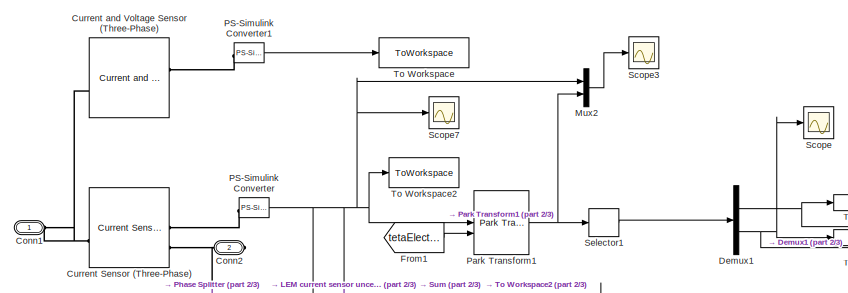
[diagram: Sensing currents1 - part 1/3, top left region]
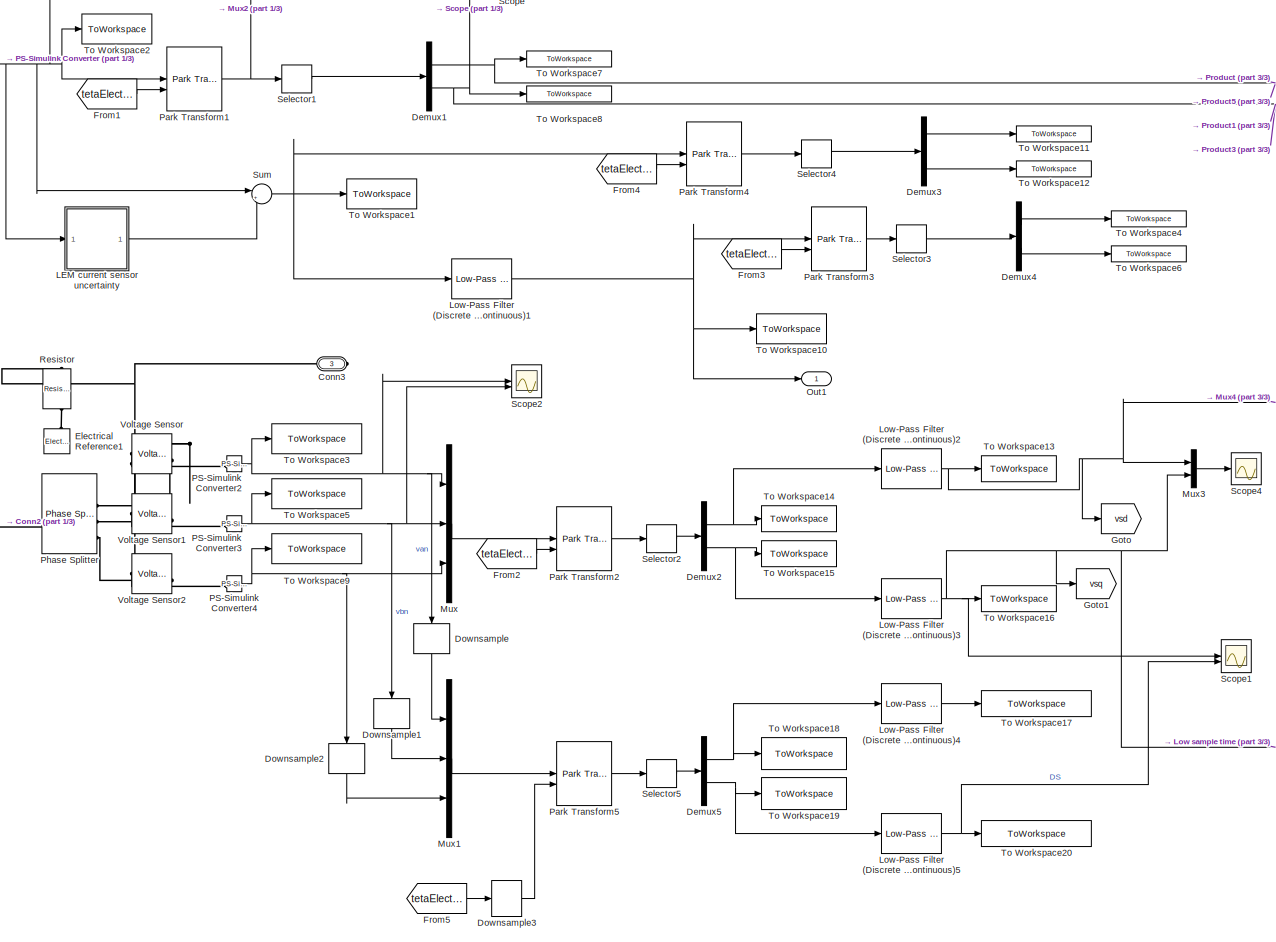
[diagram: Sensing currents1 - part 2/3, center side, full height]
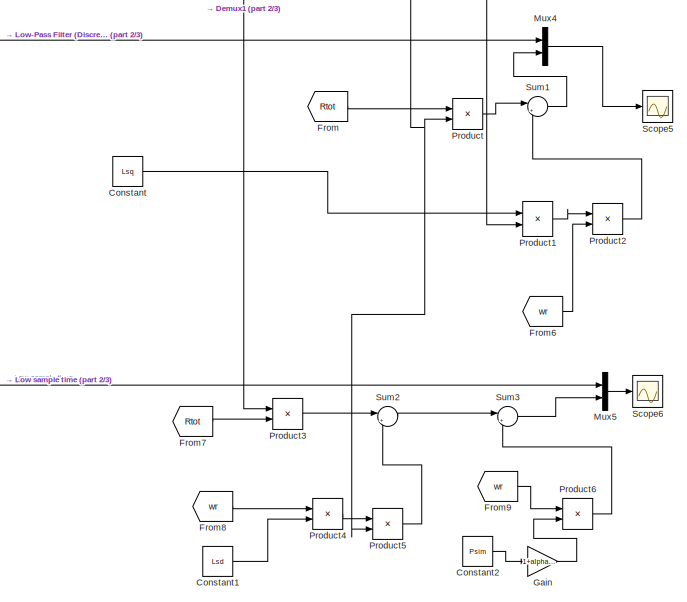
[diagram: Sensing currents1 - part 3/3, bottom right region]
BLOCK [SubSystem] Sensing currents1
BLOCK [PMIOPort] Sensing currents1/Conn1
  Side = Left
BLOCK [PMIOPort] Sensing currents1/Conn2
  Port = 2
  Side = Right
BLOCK [PMIOPort] Sensing currents1/Conn3
  Port = 3
  Side = Right
BLOCK [Constant] Sensing currents1/Constant
  Value = Lsq
BLOCK [Constant] Sensing currents1/Constant1
  Value = Lsd
BLOCK [Constant] Sensing currents1/Constant2
  Value = Psim
BLOCK [Reference] Sensing currents1/Current Sensor (Three-Phase)  REF=ee_lib/Sensors &
Transducers/Current Sensor
(Three-Phase)
  SourceBlock = ee_lib/Sensors &\nTransducers/Current Sensor\n(Three-Phase)
  SourceType = Current Sensor\n(Three-Phase)
BLOCK [Reference] Sensing currents1/Current and Voltage Sensor (Three-Phase)  REF=ee_lib/Sensors &
Transducers/Current and Voltage
Sensor (Three-Phase)
  SourceBlock = ee_lib/Sensors &\nTransducers/Current and Voltage\nSensor (Three-Phase)
  SourceType = Current and Voltage\nSensor (Three-Phase)
BLOCK [Demux] Sensing currents1/Demux1
  Outputs = 2
BLOCK [Demux] Sensing currents1/Demux2
  Outputs = 2
BLOCK [Demux] Sensing currents1/Demux3
  Outputs = 2
BLOCK [Demux] Sensing currents1/Demux4
  Outputs = 2
BLOCK [Demux] Sensing currents1/Demux5
  Outputs = 2
BLOCK [DownSample] Sensing currents1/Downsample
  InputProcessing = Elements as channels (sample based)
  N = 80
  NameLocation = left
  RateOptions = Allow multirate processing
BLOCK [DownSample] Sensing currents1/Downsample1
  InputProcessing = Elements as channels (sample based)
  N = 80
  NameLocation = left
  RateOptions = Allow multirate processing
BLOCK [DownSample] Sensing currents1/Downsample2
  InputProcessing = Elements as channels (sample based)
  N = 80
  NameLocation = left
  RateOptions = Allow multirate processing
BLOCK [DownSample] Sensing currents1/Downsample3
  InputProcessing = Elements as channels (sample based)
  N = 80
  RateOptions = Allow multirate processing
BLOCK [Reference] Sensing currents1/Electrical Reference1  REF=fl_lib/Electrical/Electrical Elements/Electrical Reference
  NameLocation = right
  SourceBlock = fl_lib/Electrical/Electrical Elements/Electrical Reference
  SourceType = Electrical Reference
BLOCK [From] Sensing currents1/From
  GotoTag = Rtot
  TagVisibility = global
BLOCK [From] Sensing currents1/From1
  GotoTag = tetaElectric
  TagVisibility = global
BLOCK [From] Sensing currents1/From2
  GotoTag = tetaElectric
  TagVisibility = global
BLOCK [From] Sensing currents1/From3
  GotoTag = tetaElectric
  TagVisibility = global
BLOCK [From] Sensing currents1/From4
  GotoTag = tetaElectric
  TagVisibility = global
BLOCK [From] Sensing currents1/From5
  GotoTag = tetaElectric
  TagVisibility = global
BLOCK [From] Sensing currents1/From6
  GotoTag = wr
  TagVisibility = global
BLOCK [From] Sensing currents1/From7
  GotoTag = Rtot
  TagVisibility = global
BLOCK [From] Sensing currents1/From8
  GotoTag = wr
  TagVisibility = global
BLOCK [From] Sensing currents1/From9
  GotoTag = wr
  TagVisibility = global
BLOCK [Gain] Sensing currents1/Gain
  Gain = 1+alpha_PM*(Trotor+273.15-Trif)
BLOCK [Goto] Sensing currents1/Goto
  GotoTag = vsd
  TagVisibility = global
BLOCK [Goto] Sensing currents1/Goto1
  GotoTag = vsq
  TagVisibility = global
BLOCK [SubSystem] Sensing currents1/LEM current sensor uncertainty
BLOCK [Demux] Sensing currents1/LEM current sensor uncertainty/Demux
  Outputs = 3
BLOCK [Inport] Sensing currents1/LEM current sensor uncertainty/In1
BLOCK [Mux] Sensing currents1/LEM current sensor uncertainty/Mux
  DisplayOption = bar
  Inputs = 3
BLOCK [Constant] Sensing currents1/LEM current sensor uncertainty/Offset
  Value = 0
BLOCK [Constant] Sensing currents1/LEM current sensor uncertainty/Offset1
  Value = 0
BLOCK [Constant] Sensing currents1/LEM current sensor uncertainty/Offset2
  Value = 0
BLOCK [Outport] Sensing currents1/LEM current sensor uncertainty/Out1
BLOCK [Product] Sensing currents1/LEM current sensor uncertainty/Product
BLOCK [Product] Sensing currents1/LEM current sensor uncertainty/Product2
BLOCK [Product] Sensing currents1/LEM current sensor uncertainty/Product3
BLOCK [Sum] Sensing currents1/LEM current sensor uncertainty/Sum
  Inputs = |++
BLOCK [Sum] Sensing currents1/LEM current sensor uncertainty/Sum1
  Inputs = |++
BLOCK [Sum] Sensing currents1/LEM current sensor uncertainty/Sum2
  Inputs = |++
BLOCK [UniformRandomNumber] Sensing currents1/LEM current sensor uncertainty/Uniform Random Number
  Maximum = 0.0065
  Minimum = -0.0065
  SampleTime = TT_c
BLOCK [Reference] Sensing currents1/Low-Pass Filter (Discrete or Continuous)1  REF=eeGeneralControl/Low-Pass Filter
(Discrete or Continuous)
  SourceBlock = eeGeneralControl/Low-Pass Filter\n(Discrete or Continuous)
  SourceType = Low-Pass Filter (Discrete or Continuous)
BLOCK [Reference] Sensing currents1/Low-Pass Filter (Discrete or Continuous)2  REF=eeGeneralControl/Low-Pass Filter
(Discrete or Continuous)
  SourceBlock = eeGeneralControl/Low-Pass Filter\n(Discrete or Continuous)
  SourceType = Low-Pass Filter (Discrete or Continuous)
BLOCK [Reference] Sensing currents1/Low-Pass Filter (Discrete or Continuous)3  REF=eeGeneralControl/Low-Pass Filter
(Discrete or Continuous)
  SourceBlock = eeGeneralControl/Low-Pass Filter\n(Discrete or Continuous)
  SourceType = Low-Pass Filter (Discrete or Continuous)
BLOCK [Reference] Sensing currents1/Low-Pass Filter (Discrete or Continuous)4  REF=eeGeneralControl/Low-Pass Filter
(Discrete or Continuous)
  SourceBlock = eeGeneralControl/Low-Pass Filter\n(Discrete or Continuous)
  SourceType = Low-Pass Filter (Discrete or Continuous)
BLOCK [Reference] Sensing currents1/Low-Pass Filter (Discrete or Continuous)5  REF=eeGeneralControl/Low-Pass Filter
(Discrete or Continuous)
  SourceBlock = eeGeneralControl/Low-Pass Filter\n(Discrete or Continuous)
  SourceType = Low-Pass Filter (Discrete or Continuous)
BLOCK [Mux] Sensing currents1/Mux
  DisplayOption = bar
  Inputs = 3
BLOCK [Mux] Sensing currents1/Mux1
  DisplayOption = bar
  Inputs = 3
BLOCK [Mux] Sensing currents1/Mux2
  DisplayOption = bar
  Inputs = 2
BLOCK [Mux] Sensing currents1/Mux3
  DisplayOption = bar
  Inputs = 2
BLOCK [Mux] Sensing currents1/Mux4
  DisplayOption = bar
  Inputs = 2
BLOCK [Mux] Sensing currents1/Mux5
  DisplayOption = bar
  Inputs = 2
BLOCK [Outport] Sensing currents1/Out1
BLOCK [Reference] Sensing currents1/PS-Simulink Converter  REF=nesl_utility/PS-Simulink
Converter
  SourceBlock = nesl_utility/PS-Simulink\nConverter
  SourceType = PS-Simulink\nConverter
BLOCK [Reference] Sensing currents1/PS-Simulink Converter1  REF=nesl_utility/PS-Simulink
Converter
  SourceBlock = nesl_utility/PS-Simulink\nConverter
  SourceType = PS-Simulink\nConverter
BLOCK [Reference] Sensing currents1/PS-Simulink Converter2  REF=nesl_utility/PS-Simulink
Converter
  SourceBlock = nesl_utility/PS-Simulink\nConverter
  SourceType = PS-Simulink\nConverter
BLOCK [Reference] Sensing currents1/PS-Simulink Converter3  REF=nesl_utility/PS-Simulink
Converter
  SourceBlock = nesl_utility/PS-Simulink\nConverter
  SourceType = PS-Simulink\nConverter
BLOCK [Reference] Sensing currents1/PS-Simulink Converter4  REF=nesl_utility/PS-Simulink
Converter
  SourceBlock = nesl_utility/PS-Simulink\nConverter
  SourceType = PS-Simulink\nConverter
BLOCK [Reference] Sensing currents1/Park Transform1  REF=eeTransforms/Park Transform
  SourceBlock = eeTransforms/Park Transform
  SourceType = Park Transform
BLOCK [Reference] Sensing currents1/Park Transform2  REF=eeTransforms/Park Transform
  SourceBlock = eeTransforms/Park Transform
  SourceType = Park Transform
BLOCK [Reference] Sensing currents1/Park Transform3  REF=eeTransforms/Park Transform
  SourceBlock = eeTransforms/Park Transform
  SourceType = Park Transform
BLOCK [Reference] Sensing currents1/Park Transform4  REF=eeTransforms/Park Transform
  SourceBlock = eeTransforms/Park Transform
  SourceType = Park Transform
BLOCK [Reference] Sensing currents1/Park Transform5  REF=eeTransforms/Park Transform
  SourceBlock = eeTransforms/Park Transform
  SourceType = Park Transform
BLOCK [Reference] Sensing currents1/Phase Splitter  REF=ee_lib/Connectors &
References/Phase Splitter
  SourceBlock = ee_lib/Connectors &\nReferences/Phase Splitter
  SourceType = Phase Splitter
BLOCK [Product] Sensing currents1/Product
BLOCK [Product] Sensing currents1/Product1
BLOCK [Product] Sensing currents1/Product2
BLOCK [Product] Sensing currents1/Product3
BLOCK [Product] Sensing currents1/Product4
BLOCK [Product] Sensing currents1/Product5
BLOCK [Product] Sensing currents1/Product6
BLOCK [Reference] Sensing currents1/Resistor  REF=fl_lib/Electrical/Electrical Elements/Resistor
  NameLocation = left
  SourceBlock = fl_lib/Electrical/Electrical Elements/Resistor
  SourceType = Resistor
BLOCK [Scope] Sensing currents1/Scope
  ActiveDisplayYMaximum = 25.71135
  ActiveDisplayYMinimum = -23.60401
  DataLoggingVariableName = ScopeData2
  Floating = off
  GraphicalSettings = {"GraphicalSettings":{"LegacySettings":true,"Style":{"AxesScalingProperties":{"ScaleAxesLimitsAtStop":false},"Style":{"AxesColor":"[0 0 0]","ChannelNames":[""],"ColorOrder":"[1 0.909803921568627 0.392156862745098;0.149019607843137 0.549019607843137 0.866666666666667;0.96078431372549 0.466666666666667 0.16078431372549;0.286274509803922 0.858823529411765 0.250980392156863;0.752941176470588 0.3607843...<+578ch>
  MultipleDisplayCache = [{"MaxYLimMag":25.71135,"MaxYLimReal":25.71135,"MinYLimMag":0,"MinYLimReal":-23.60401,"PlotAsMagnitudePhase":false,"ShowGrid":true,"ShowLegend":false,"Title":"%<SignalLabel>","YLabel":""}]
  NumInputPorts = 1
  WasSavedAsWebScope = on
BLOCK [Scope] Sensing currents1/Scope1
  ActiveDisplayYMaximum = 2.53334
  ActiveDisplayYMinimum = -10.28579
  DataLoggingVariableName = ScopeData1
  Floating = off
  GraphicalSettings = {"GraphicalSettings":{"LegacySettings":true,"Style":{"Style":{"AxesColor":"[0 0 0]","ChannelNames":[""],"ColorOrder":"[1 1 0.0666666666666667;0.0745098039215686 0.623529411764706 1;1 0.411764705882353 0.16078431372549;0.392156862745098 0.831372549019608 0.0745098039215686;0.717647058823529 0.274509803921569 1;0.0588235294117647 1 1;1 0.0745098039215686 0.650980392156863]","CurrentConfiguration":"e...<+346ch>
  MultipleDisplayCache = [{"MaxYLimMag":10.28579,"MaxYLimReal":2.53334,"MinYLimMag":0,"MinYLimReal":-10.28579,"PlotAsMagnitudePhase":false,"ShowGrid":true,"ShowLegend":true,"Title":"%<SignalLabel>","YLabel":""}]
  NumInputPorts = 2
  ShowLegend = on
  WasSavedAsWebScope = on
  WindowPosition = [657 214 560 420]
BLOCK [Scope] Sensing currents1/Scope2
  ActiveDisplayYMaximum = 487.22639
  ActiveDisplayYMinimum = -488.68542
  DataLoggingVariableName = ScopeData2
  Floating = off
  GraphicalSettings = {"GraphicalSettings":{"LegacySettings":true,"Style":{"AxesScalingProperties":{"ScaleAxesLimitsAtStop":false},"Style":{"AxesColor":"[0 0 0]","ChannelNames":[""],"ColorOrder":"[1 1 0.0666666666666667;0.0745098039215686 0.623529411764706 1;1 0.411764705882353 0.16078431372549;0.392156862745098 0.831372549019608 0.0745098039215686;0.717647058823529 0.274509803921569 1;0.0588235294117647 1 1;1 0.074509...<+453ch>
  MultipleDisplayCache = [{"MaxYLimMag":488.68542,"MaxYLimReal":487.22639,"MinYLimMag":0,"MinYLimReal":-488.68542,"PlotAsMagnitudePhase":false,"ShowGrid":true,"ShowLegend":true,"Title":"%<SignalLabel>","YLabel":""}]
  NumInputPorts = 2
  ShowLegend = on
  WasSavedAsWebScope = on
  WindowPosition = [657 214 560 420]
BLOCK [Scope] Sensing currents1/Scope3
  ActiveDisplayYMaximum = 10.02979
  ActiveDisplayYMinimum = 1.1409
  DataLoggingVariableName = ScopeData1
  Floating = off
  GraphicalSettings = {"GraphicalSettings":{"LegacySettings":true,"Style":{"AxesScalingProperties":{"ScaleAxesLimitsAtStop":false},"Style":{"AxesColor":"[0 0 0]","ChannelNames":[""],"ColorOrder":"[1 0.909803921568627 0.392156862745098;0.149019607843137 0.549019607843137 0.866666666666667;0.96078431372549 0.466666666666667 0.16078431372549;0.286274509803922 0.858823529411765 0.250980392156863;0.752941176470588 0.3607843...<+547ch>
  MultipleDisplayCache = [{"MaxYLimMag":10.02979,"MaxYLimReal":10.02979,"MinYLimMag":1.1409,"MinYLimReal":1.1409,"PlotAsMagnitudePhase":false,"ShowGrid":true,"ShowLegend":false,"Title":"%<SignalLabel>","YLabel":""}]
  NumInputPorts = 1
  WasSavedAsWebScope = on
BLOCK [Scope] Sensing currents1/Scope4
  DataLoggingVariableName = ScopeData4
  Floating = off
  GraphicalSettings = {"GraphicalSettings":{"LegacySettings":true,"Style":{"Style":{"CurrentConfiguration":"extmgr.ConfigurationSet","MinimizeControls":"false","PlotType":"Auto","Version":"2024b"}}}}
  NumInputPorts = 1
  WasSavedAsWebScope = on
BLOCK [Scope] Sensing currents1/Scope5
  ActiveDisplayYMaximum = 38.588110138337136
  ActiveDisplayYMinimum = -46.657842139161438
  DataLoggingVariableName = ScopeData5
  Floating = off
  GraphicalSettings = {"Style":{"BackgroundColor":[0.12941176470588237,0.12941176470588237,0.12941176470588237],"AxesColor":[0.07058823529411765,0.07058823529411765,0.07058823529411765],"LabelsColor":[0.8509803921568627,0.8509803921568627,0.8509803921568627],"PreserveColors":false,"Visible":[true,true],"LineStyle":["-","-"],"LineWidth":[1.5,1.5],"BarWidth":[0.9,0.9],"LineColor":["auto","auto"],"LineFaceAlpha":[1,1],"Li...<+2117ch>
  MultipleDisplayCache = [{"MaxYLimMag":46.657842139161438,"MaxYLimReal":38.588110138337136,"MinYLimMag":0,"MinYLimReal":-46.657842139161438,"PlotAsMagnitudePhase":false,"ShowGrid":true,"ShowLegend":true,"Title":"%<SignalLabel>","YLabel":""}]
  NumInputPorts = 1
  ScopeFrameLocation = window
  ShowLegend = on
  Visible = on
  WasSavedAsWebScope = on
  WindowPosition = [488.000000,222.000000,560.000000,420.000000,]
BLOCK [Scope] Sensing currents1/Scope6
  ActiveDisplayYMaximum = 65.546127553522766
  ActiveDisplayYMinimum = -8.3362410126859654
  DataLoggingVariableName = ScopeData1
  Floating = off
  GraphicalSettings = {"Style":{"BackgroundColor":[0.12941176470588237,0.12941176470588237,0.12941176470588237],"AxesColor":[0.07058823529411765,0.07058823529411765,0.07058823529411765],"LabelsColor":[0.8509803921568627,0.8509803921568627,0.8509803921568627],"PreserveColors":false,"Visible":[true,true],"LineStyle":["-","-"],"LineWidth":[1.5,1.5],"BarWidth":[0.9,0.9],"LineColor":["auto","auto"],"LineFaceAlpha":[1,1],"Li...<+2078ch>
  MultipleDisplayCache = [{"MaxYLimMag":65.546127553522766,"MaxYLimReal":65.546127553522766,"MinYLimMag":0,"MinYLimReal":-8.3362410126859654,"PlotAsMagnitudePhase":false,"ShowGrid":true,"ShowLegend":false,"Title":"%<SignalLabel>","YLabel":""}]
  NumInputPorts = 1
  ScopeFrameLocation = window
  WasSavedAsWebScope = on
  WindowPosition = [722.000000,175.000000,560.000000,420.000000,]
BLOCK [Scope] Sensing currents1/Scope7
  ActiveDisplayYMaximum = 9.56927
  ActiveDisplayYMinimum = -3.76407
  DataLoggingVariableName = ScopeData1
  Floating = off
  GraphicalSettings = {"GraphicalSettings":{"LegacySettings":true,"Style":{"AxesScalingProperties":{"ScaleAxesLimitsAtStop":false},"Style":{"AxesColor":"[0 0 0]","ChannelNames":[""],"ColorOrder":"[1 0.909803921568627 0.392156862745098;0.149019607843137 0.549019607843137 0.866666666666667;0.96078431372549 0.466666666666667 0.16078431372549;0.286274509803922 0.858823529411765 0.250980392156863;0.752941176470588 0.3607843...<+550ch>
  MultipleDisplayCache = [{"MaxYLimMag":9.56927,"MaxYLimReal":9.56927,"MinYLimMag":0,"MinYLimReal":-3.76407,"PlotAsMagnitudePhase":false,"ShowGrid":true,"ShowLegend":false,"Title":"%<SignalLabel>","YLabel":""}]
  NumInputPorts = 1
  WasSavedAsWebScope = on
BLOCK [Selector] Sensing currents1/Selector1
  IndexOptions = Index vector (dialog)
  Indices = [1 2]
  InputPortWidth = 3
  OutputSizes = 1
BLOCK [Selector] Sensing currents1/Selector2
  IndexOptions = Index vector (dialog)
  Indices = [1 2]
  InputPortWidth = 3
  OutputSizes = 1
BLOCK [Selector] Sensing currents1/Selector3
  IndexOptions = Index vector (dialog)
  Indices = [1 2]
  InputPortWidth = 3
  OutputSizes = 1
BLOCK [Selector] Sensing currents1/Selector4
  IndexOptions = Index vector (dialog)
  Indices = [1 2]
  InputPortWidth = 3
  OutputSizes = 1
BLOCK [Selector] Sensing currents1/Selector5
  IndexOptions = Index vector (dialog)
  Indices = [1 2]
  InputPortWidth = 3
  OutputSizes = 1
BLOCK [Sum] Sensing currents1/Sum
  Inputs = |++
BLOCK [Sum] Sensing currents1/Sum1
  Inputs = |+-
BLOCK [Sum] Sensing currents1/Sum2
  Inputs = |++
BLOCK [Sum] Sensing currents1/Sum3
  Inputs = |++
BLOCK [ToWorkspace] Sensing currents1/To Workspace
  FixptAsFi = on
  MaxDataPoints = inf
  SampleTime = -1
  VariableName = V_pg
BLOCK [ToWorkspace] Sensing currents1/To Workspace1
  FixptAsFi = on
  MaxDataPoints = inf
  SampleTime = TT_sc
  VariableName = i_err_NF
BLOCK [ToWorkspace] Sensing currents1/To Workspace10
  FixptAsFi = on
  MaxDataPoints = inf
  SampleTime = TT_sc
  VariableName = i_err_F
BLOCK [ToWorkspace] Sensing currents1/To Workspace11
  MaxDataPoints = inf
  NameLocation = top
  SampleTime = TT_sc
  VariableName = IdMis_err_NF
BLOCK [ToWorkspace] Sensing currents1/To Workspace12
  MaxDataPoints = inf
  NameLocation = top
  SampleTime = TT_sc
  VariableName = IqMis_err_NF
BLOCK [ToWorkspace] Sensing currents1/To Workspace13
  MaxDataPoints = inf
  NameLocation = top
  SampleTime = TT_c
  VariableName = VdMis_no_err_F
BLOCK [ToWorkspace] Sensing currents1/To Workspace14
  MaxDataPoints = inf
  NameLocation = top
  SampleTime = TT_c
  VariableName = VdMis_no_err_NF
BLOCK [ToWorkspace] Sensing currents1/To Workspace15
  MaxDataPoints = inf
  NameLocation = top
  SampleTime = TT_c
  VariableName = VqMis_no_err_NF
BLOCK [ToWorkspace] Sensing currents1/To Workspace16
  MaxDataPoints = inf
  NameLocation = top
  SampleTime = TT_c
  VariableName = VqMis_no_err_F
BLOCK [ToWorkspace] Sensing currents1/To Workspace17
  MaxDataPoints = inf
  NameLocation = top
  SampleTime = TT_sc
  VariableName = VdMis_no_err_DS_F
BLOCK [ToWorkspace] Sensing currents1/To Workspace18
  MaxDataPoints = inf
  NameLocation = top
  SampleTime = TT_sc
  VariableName = VdMis_no_err_DS_NF
BLOCK [ToWorkspace] Sensing currents1/To Workspace19
  MaxDataPoints = inf
  NameLocation = top
  SampleTime = TT_sc
  VariableName = VqMis_no_err_DS_NF
BLOCK [ToWorkspace] Sensing currents1/To Workspace2
  FixptAsFi = on
  MaxDataPoints = inf
  SampleTime = TT_sc
  VariableName = i_no_err
BLOCK [ToWorkspace] Sensing currents1/To Workspace20
  MaxDataPoints = inf
  NameLocation = top
  SampleTime = TT_sc
  VariableName = VqMis_no_err_DS_F
BLOCK [ToWorkspace] Sensing currents1/To Workspace3
  FixptAsFi = on
  MaxDataPoints = inf
  SampleTime = -1
  VariableName = van
BLOCK [ToWorkspace] Sensing currents1/To Workspace4
  MaxDataPoints = inf
  NameLocation = top
  SampleTime = TT_sc
  VariableName = IdMis_err_F
BLOCK [ToWorkspace] Sensing currents1/To Workspace5
  FixptAsFi = on
  MaxDataPoints = inf
  SampleTime = -1
  VariableName = vbn
BLOCK [ToWorkspace] Sensing currents1/To Workspace6
  MaxDataPoints = inf
  NameLocation = top
  SampleTime = TT_sc
  VariableName = IqMis_err_F
BLOCK [ToWorkspace] Sensing currents1/To Workspace7
  MaxDataPoints = inf
  NameLocation = top
  SampleTime = TT_sc
  VariableName = IdMis_no_err
BLOCK [ToWorkspace] Sensing currents1/To Workspace8
  MaxDataPoints = inf
  NameLocation = top
  SampleTime = TT_sc
  VariableName = IqMis_no_err
BLOCK [ToWorkspace] Sensing currents1/To Workspace9
  FixptAsFi = on
  MaxDataPoints = inf
  SampleTime = -1
  VariableName = vcn
BLOCK [Reference] Sensing currents1/Voltage Sensor  REF=fl_lib/Electrical/Electrical Sensors/Voltage Sensor
  NameLocation = top
  SourceBlock = fl_lib/Electrical/Electrical Sensors/Voltage Sensor
  SourceType = Voltage Sensor
BLOCK [Reference] Sensing currents1/Voltage Sensor1  REF=fl_lib/Electrical/Electrical Sensors/Voltage Sensor
  NameLocation = top
  SourceBlock = fl_lib/Electrical/Electrical Sensors/Voltage Sensor
  SourceType = Voltage Sensor
BLOCK [Reference] Sensing currents1/Voltage Sensor2  REF=fl_lib/Electrical/Electrical Sensors/Voltage Sensor
  NameLocation = top
  SourceBlock = fl_lib/Electrical/Electrical Sensors/Voltage Sensor
  SourceType = Voltage Sensor
BLOCK [Reference] Simulink-PS Converter1  REF=nesl_utility/Simulink-PS
Converter
  NameLocation = top
  SourceBlock = nesl_utility/Simulink-PS\nConverter
  SourceType = Simulink-PS\nConverter
BLOCK [Reference] Solver Configuration1  REF=nesl_utility/Solver
Configuration
  SourceBlock = nesl_utility/Solver\nConfiguration
  SourceType = Solver\nConfiguration
BLOCK [Reference] Temperature Sensor  REF=fl_lib/Thermal/Thermal Sensors/Temperature Sensor
  SourceBlock = fl_lib/Thermal/Thermal Sensors/Temperature Sensor
  SourceType = Temperature Sensor
BLOCK [Reference] Temperature Sensor1  REF=fl_lib/Thermal/Thermal Sensors/Temperature Sensor
  SourceBlock = fl_lib/Thermal/Thermal Sensors/Temperature Sensor
  SourceType = Temperature Sensor
BLOCK [Reference] Thermal Reference  REF=fl_lib/Thermal/Thermal Elements/Thermal Reference
  NameLocation = right
  SourceBlock = fl_lib/Thermal/Thermal Elements/Thermal Reference
  SourceType = Thermal Reference
BLOCK [SubSystem] Three-phase inverter
BLOCK [PMIOPort] Three-phase inverter/+
  Port = 2
  Side = Left
  Tag = PMCPort
BLOCK [PMIOPort] Three-phase inverter/-
  Port = 3
  Side = Left
  Tag = PMCPort
BLOCK [Outport] Three-phase inverter/Dc_voltage
  NameLocation = top
BLOCK [Demux] Three-phase inverter/Demux
  NameLocation = right
  Outputs = 6
BLOCK [Inport] Three-phase inverter/G
BLOCK [Reference] Three-phase inverter/IGBT A(H)  REF=ee_lib/Semiconductors &
Converters/IGBT
(Ideal,
Switching)
  SourceBlock = ee_lib/Semiconductors &\nConverters/IGBT\n(Ideal,\nSwitching)
  SourceType = IGBT\n(Ideal,\nSwitching)
BLOCK [Reference] Three-phase inverter/IGBT A(L)  REF=ee_lib/Semiconductors &
Converters/IGBT
(Ideal,
Switching)
  SourceBlock = ee_lib/Semiconductors &\nConverters/IGBT\n(Ideal,\nSwitching)
  SourceType = IGBT\n(Ideal,\nSwitching)
BLOCK [Reference] Three-phase inverter/IGBT B(H)  REF=ee_lib/Semiconductors &
Converters/IGBT
(Ideal,
Switching)
  SourceBlock = ee_lib/Semiconductors &\nConverters/IGBT\n(Ideal,\nSwitching)
  SourceType = IGBT\n(Ideal,\nSwitching)
BLOCK [Reference] Three-phase inverter/IGBT B(L)  REF=ee_lib/Semiconductors &
Converters/IGBT
(Ideal,
Switching)
  SourceBlock = ee_lib/Semiconductors &\nConverters/IGBT\n(Ideal,\nSwitching)
  SourceType = IGBT\n(Ideal,\nSwitching)
BLOCK [Reference] Three-phase inverter/IGBT C(H)  REF=ee_lib/Semiconductors &
Converters/IGBT
(Ideal,
Switching)
  SourceBlock = ee_lib/Semiconductors &\nConverters/IGBT\n(Ideal,\nSwitching)
  SourceType = IGBT\n(Ideal,\nSwitching)
BLOCK [Reference] Three-phase inverter/IGBT C(L)  REF=ee_lib/Semiconductors &
Converters/IGBT
(Ideal,
Switching)
  SourceBlock = ee_lib/Semiconductors &\nConverters/IGBT\n(Ideal,\nSwitching)
  SourceType = IGBT\n(Ideal,\nSwitching)
BLOCK [SubSystem] Three-phase inverter/LEM voltage sensor uncertainty
  NameLocation = top
BLOCK [Inport] Three-phase inverter/LEM voltage sensor uncertainty/In1
  NameLocation = top
BLOCK [Outport] Three-phase inverter/LEM voltage sensor uncertainty/Out1
BLOCK [Product] Three-phase inverter/LEM voltage sensor uncertainty/Product
  NameLocation = top
BLOCK [UniformRandomNumber] Three-phase inverter/LEM voltage sensor uncertainty/Uniform Random Number
  Maximum = 0.008
  Minimum = -0.008
  NameLocation = top
  SampleTime = TT_c
BLOCK [Reference] Three-phase inverter/Low-Pass Filter (Discrete or Continuous)1  REF=eeGeneralControl/Low-Pass Filter
(Discrete or Continuous)
  NameLocation = top
  SourceBlock = eeGeneralControl/Low-Pass Filter\n(Discrete or Continuous)
  SourceType = Low-Pass Filter (Discrete or Continuous)
BLOCK [Reference] Three-phase inverter/PS-Simulink Converter  REF=nesl_utility/PS-Simulink
Converter
  NameLocation = top
  SourceBlock = nesl_utility/PS-Simulink\nConverter
  SourceType = PS-Simulink\nConverter
BLOCK [Reference] Three-phase inverter/Phase Splitter  REF=ee_lib/Connectors &
References/Phase Splitter
  SourceBlock = ee_lib/Connectors &\nReferences/Phase Splitter
  SourceType = Phase Splitter
BLOCK [Scope] Three-phase inverter/Scope
  ActiveDisplayYMaximum = 540.70285
  ActiveDisplayYMinimum = 537.21979
  DataLoggingVariableName = ScopeData1
  Floating = off
  GraphicalSettings = {"GraphicalSettings":{"LegacySettings":true,"Style":{"Style":{"AxesColor":"[0 0 0]","ChannelNames":[""],"ColorOrder":"[1 1 0.0666666666666667;0.0745098039215686 0.623529411764706 1;1 0.411764705882353 0.16078431372549;0.392156862745098 0.831372549019608 0.0745098039215686;0.717647058823529 0.274509803921569 1;0.0588235294117647 1 1;1 0.0745098039215686 0.650980392156863]","CurrentConfiguration":"e...<+378ch>
  MultipleDisplayCache = [{"MaxYLimMag":540.70285,"MaxYLimReal":540.70285,"MinYLimMag":537.21979,"MinYLimReal":537.21979,"PlotAsMagnitudePhase":false,"ShowGrid":true,"ShowLegend":false,"Title":"%<SignalLabel>","YLabel":""}]
  NumInputPorts = 1
  WasSavedAsWebScope = on
BLOCK [Reference] Three-phase inverter/Simulink-PS G1  REF=nesl_utility/Simulink-PS
Converter
  NameLocation = right
  SourceBlock = nesl_utility/Simulink-PS\nConverter
  SourceType = Simulink-PS\nConverter
BLOCK [Reference] Three-phase inverter/Simulink-PS G2  REF=nesl_utility/Simulink-PS
Converter
  NameLocation = right
  SourceBlock = nesl_utility/Simulink-PS\nConverter
  SourceType = Simulink-PS\nConverter
BLOCK [Reference] Three-phase inverter/Simulink-PS G3  REF=nesl_utility/Simulink-PS
Converter
  NameLocation = left
  SourceBlock = nesl_utility/Simulink-PS\nConverter
  SourceType = Simulink-PS\nConverter
BLOCK [Reference] Three-phase inverter/Simulink-PS G4  REF=nesl_utility/Simulink-PS
Converter
  NameLocation = right
  SourceBlock = nesl_utility/Simulink-PS\nConverter
  SourceType = Simulink-PS\nConverter
BLOCK [Reference] Three-phase inverter/Simulink-PS G5  REF=nesl_utility/Simulink-PS
Converter
  NameLocation = right
  SourceBlock = nesl_utility/Simulink-PS\nConverter
  SourceType = Simulink-PS\nConverter
BLOCK [Reference] Three-phase inverter/Simulink-PS G6  REF=nesl_utility/Simulink-PS
Converter
  NameLocation = right
  SourceBlock = nesl_utility/Simulink-PS\nConverter
  SourceType = Simulink-PS\nConverter
BLOCK [Sum] Three-phase inverter/Sum
  Inputs = |++
  NameLocation = top
BLOCK [ToWorkspace] Three-phase inverter/To Workspace1
  FixptAsFi = on
  MaxDataPoints = inf
  SampleTime = -1
  VariableName = Gate_signals
BLOCK [ToWorkspace] Three-phase inverter/To Workspace2
  FixptAsFi = on
  MaxDataPoints = inf
  SampleTime = TT_sc
  VariableName = Dc_voltage_err_NF
BLOCK [ToWorkspace] Three-phase inverter/To Workspace3
  FixptAsFi = on
  MaxDataPoints = inf
  SampleTime = TT_sc
  VariableName = Dc_voltage_no_err
BLOCK [ToWorkspace] Three-phase inverter/To Workspace4
  FixptAsFi = on
  MaxDataPoints = inf
  NameLocation = top
  SampleTime = TT_sc
  VariableName = Dc_voltage_err
BLOCK [Reference] Three-phase inverter/Voltage Sensor  REF=fl_lib/Electrical/Electrical Sensors/Voltage Sensor
  NameLocation = right
  SourceBlock = fl_lib/Electrical/Electrical Sensors/Voltage Sensor
  SourceType = Voltage Sensor
BLOCK [PMIOPort] Three-phase inverter/~
  Side = Right
  Tag = PMCPort
BLOCK [ToWorkspace] To Workspace1
  MaxDataPoints = inf
  SampleTime = TT_sc
  VariableName = tsSim_sampled
BLOCK [ToWorkspace] To Workspace2
  MaxDataPoints = inf
  SampleTime = -1
  VariableName = tsSim
BLOCK [ToWorkspace] To Workspace3
  MaxDataPoints = inf
  SampleTime = -1
  VariableName = RotorTemperature
BLOCK [ToWorkspace] To Workspace4
  MaxDataPoints = inf
  SampleTime = -1
  VariableName = PhaseATemp
BLOCK [SubSystem] Variable resistance
BLOCK [Lookup_n-D] Variable resistance/1-D Lookup Table
  BreakpointsForDimension1 = f_AC_corr
  InputPortMap = u0
  InternalRulePriority = Speed
  NumberOfTableDimensions = 1
  RndMeth = Simplest
  Table = Ratio_Rs_AC
BLOCK [PMIOPort] Variable resistance/Conn2
  NameLocation = top
  Port = 2
  Side = Right
BLOCK [PMIOPort] Variable resistance/Conn5
  Side = Left
BLOCK [Constant] Variable resistance/Constant1
  Value = Rs
BLOCK [From] Variable resistance/From2
  GotoTag = wRotor
  TagVisibility = global
BLOCK [Gain] Variable resistance/Gain
  Gain = 1+alpha*(Tphase+273.15 - Trif)
BLOCK [Gain] Variable resistance/Gain2
  Gain = np/(2*pi)
BLOCK [Goto] Variable resistance/Goto
  GotoTag = Rtot
  TagVisibility = global
BLOCK [Reference] Variable resistance/Phase Splitter  REF=ee_lib/Connectors &
References/Phase Splitter
  SourceBlock = ee_lib/Connectors &\nReferences/Phase Splitter
  SourceType = Phase Splitter
BLOCK [Reference] Variable resistance/Phase Splitter1  REF=ee_lib/Connectors &
References/Phase Splitter
  NameLocation = top
  SourceBlock = ee_lib/Connectors &\nReferences/Phase Splitter
  SourceType = Phase Splitter
BLOCK [Product] Variable resistance/Product
BLOCK [Reference] Variable resistance/Simulink-PS Converter  REF=nesl_utility/Simulink-PS
Converter
  SourceBlock = nesl_utility/Simulink-PS\nConverter
  SourceType = Simulink-PS\nConverter
BLOCK [Sum] Variable resistance/Sum1
BLOCK [ToWorkspace] Variable resistance/To Workspace2
  MaxDataPoints = inf
  NameLocation = top
  SampleTime = TT_sc
  VariableName = Rs_tot
BLOCK [ToWorkspace] Variable resistance/To Workspace7
  MaxDataPoints = inf
  NameLocation = top
  SampleTime = TT_sc
  VariableName = Rs_f
BLOCK [Reference] Variable resistance/Variable Resistor  REF=fl_lib/Electrical/Electrical Elements/Variable Resistor
  SourceBlock = fl_lib/Electrical/Electrical Elements/Variable Resistor
  SourceType = Variable Resistor
BLOCK [Reference] Variable resistance/Variable Resistor1  REF=fl_lib/Electrical/Electrical Elements/Variable Resistor
  SourceBlock = fl_lib/Electrical/Electrical Elements/Variable Resistor
  SourceType = Variable Resistor
BLOCK [Reference] Variable resistance/Variable Resistor2  REF=fl_lib/Electrical/Electrical Elements/Variable Resistor
  SourceBlock = fl_lib/Electrical/Electrical Elements/Variable Resistor
  SourceType = Variable Resistor
ANNOTATION (root): SPMSM CON VARIAZIONI PARAMETRICHE CON EFFETTI TERMICI TWIN NOTTINGHAM - versione per gli studenti del corso di Electric Drives v1 - 06/10/2022: Prima versione - Verificato (Elia Brescia)
ANNOTATION Coppia di carico con profilo a gradini: Coppia di carico. Il suo segno viene valutato in base al verso della velocità
ANNOTATION Ideal speed transducer : delay di un passo per evitare loop albegrici
ANNOTATION Resolver : delay di un passo per evitare loop albegrici
ANNOTATION Variable resistance: Frequenza elettrica [Hz]
ANNOTATION Variable resistance: mecc [rad/s]
LINE  /Bus Selector:1 ->  /Demux:1
LINE  /Bus Selector:2 ->  /Demux1:1
LINE  /Bus Selector:3 ->  /Demux2:1
LINE  /Bus Selector:4 ->  /Demux3:1
LINE  /Constant1:1 ->  /Product:1
LINE  /Constant:1 ->  /Product2:1
LINE  /Demux1:1 ->  /To Workspace3:1
LINE  /Demux1:2 ->  /To Workspace4:1
NET  /Demux2:1 ->  /Product4:1,  /Square:1,  /To Workspace5:1
NET  /Demux2:2 ->  /Product1:1,  /Product5:2,  /Square1:1,  /To Workspace6:1
NET  /Demux3:1 ->  /Mux:1,  /To Workspace7:1
NET  /Demux3:2 ->  /Mux:2,  /To Workspace8:1
LINE  /Demux:1 ->  /To Workspace12:1
LINE  /Demux:2 ->  /To Workspace1:1
LINE  /Demux:3 ->  /To Workspace2:1
LINE  /Divide:1 ->  /Moving Average:1
LINE  /From10:1 ->  /Product4:2
LINE  /From11:1 ->  /Product5:1
LINE  /From1:1 ->  /Product2:2
LINE  /From2:1 ->  /Product:2
NET  /Gain:1 ->  /Divide:2,  /Sum2:1,  /pot attiva:1
NET  /Moving Average:1 ->  /Scope2:1,  /To Workspace:1
LINE  /Mux1:1 ->  /Scope1:1
LINE  /Mux:1 ->  /Scope:1
NET  /Product1:1 ->  /Divide:1,  /Mux1:2,  /pot meccanica:1
LINE  /Product2:1 ->  /Product3:2
NET  /Product3:1 ->  /Sum2:2,  /perdite effeto joule:1
LINE  /Product4:1 ->  /Sum1:1
LINE  /Product5:1 ->  /Sum1:2
LINE  /Product:1 ->  /Product1:2
LINE  /Square1:1 ->  /Sum:2
LINE  /Square:1 ->  /Sum:1
LINE  /Sum1:1 ->  /Gain:1
LINE  /Sum2:1 ->  /Mux1:1
LINE  /Sum:1 ->  /Product3:1
LINE  /Variables:1 ->  /Bus Selector:1
NET Clock:1 -> To Workspace1:1, To Workspace2:1
LINE Coppia di carico a singolo gradino/Constant:1 -> Coppia di carico a singolo gradino/Product1:2
LINE Coppia di carico a singolo gradino/Gain9:1 -> Coppia di carico a singolo gradino/Product1:1
NET Coppia di carico a singolo gradino/Product1:1 -> Coppia di carico a singolo gradino/Scope:1, Coppia di carico a singolo gradino/T_L:1, Coppia di carico a singolo gradino/To Workspace3:1
LINE Coppia di carico a singolo gradino/Step1:1 -> Coppia di carico a singolo gradino/Sum:2
LINE Coppia di carico a singolo gradino/Step5:1 -> Coppia di carico a singolo gradino/Sum:1
NET Coppia di carico a singolo gradino/Sum:1 -> Coppia di carico a singolo gradino/Gain9:1, Coppia di carico a singolo gradino/Scope1:1
LINE Coppia di carico a singolo gradino:1 -> Simulink-PS Converter1:1
LINE Coppia di carico con profilo a gradini/From:1 -> Coppia di carico con profilo a gradini/Gain:1
NET Coppia di carico con profilo a gradini/Gain9:1 -> Coppia di carico con profilo a gradini/Goto2:1, Coppia di carico con profilo a gradini/Scope:1, Coppia di carico con profilo a gradini/T_L:1, Coppia di carico con profilo a gradini/To Workspace3:1
LINE Coppia di carico con profilo a gradini/Gain:1 -> Coppia di carico con profilo a gradini/Square:1
LINE Coppia di carico con profilo a gradini/Square:1 -> Coppia di carico con profilo a gradini/Product:1
LINE Coppia di carico con profilo a gradini/Step5:1 -> Coppia di carico con profilo a gradini/Sum1:1
LINE Coppia di carico con profilo a gradini/Step6:1 -> Coppia di carico con profilo a gradini/Sum1:2
LINE Coppia di carico con profilo a gradini/Step7:1 -> Coppia di carico con profilo a gradini/Sum1:3
LINE Coppia di carico con profilo a gradini/Step8:1 -> Coppia di carico con profilo a gradini/Sum1:4
LINE Coppia di carico con profilo a gradini/Step9:1 -> Coppia di carico con profilo a gradini/Sum1:5
LINE Coppia di carico con profilo a gradini/Step:1 -> Coppia di carico con profilo a gradini/Product:2
LINE Coppia di carico con profilo a gradini/Sum1:1 -> Coppia di carico con profilo a gradini/Gain9:1
NET From1:1 -> Gain:1, Rate Transition3:1
LINE From3:1 -> Rate Transition2:1
LINE From4:1 -> Rate Transition4:1
LINE From5:1 -> Rate Transition5:1
NET Gain:1 -> Goto:1, Scope1:1
NET Ideal speed transducer /Gain7:1 -> Ideal speed transducer /Goto3:1, Ideal speed transducer /To Workspace1:1
NET Ideal speed transducer /PS-Simulink Converter1:1 -> Ideal speed transducer /Gain7:1, Ideal speed transducer /Posizione Meccanica:1, Ideal speed transducer /To Workspace21:1
LINE Ideal speed transducer /PS-Simulink Converter:1 -> Ideal speed transducer /Unit Delay:1
NET Ideal speed transducer /Unit Delay:1 -> Ideal speed transducer /Velocità Meccanica:1, Ideal speed transducer /rad//s->RPM:1
NET Ideal speed transducer /rad//s->RPM:1 -> Ideal speed transducer /Scope:1, Ideal speed transducer /To Workspace20:1
LINE PMSM Field-Oriented Control:1 -> Three-phase inverter:1
LINE PMSM Field-Oriented Control:2 ->  :1
LINE PS-Simulink Converter1:1 -> To Workspace4:1
LINE PS-Simulink Converter:1 -> To Workspace3:1
LINE Rate Transition1:1 -> PMSM Field-Oriented Control:1
LINE Rate Transition2:1 -> PMSM Field-Oriented Control:2
LINE Rate Transition3:1 -> PMSM Field-Oriented Control:3
LINE Rate Transition4:1 -> PMSM Field-Oriented Control:5
LINE Rate Transition5:1 -> PMSM Field-Oriented Control:4
NET Resolver /Gain7:1 -> Resolver /Goto3:1, Resolver /To Workspace1:1
LINE Resolver /Meas Vxy/PS-Simulink Converter1:1 -> Resolver /Meas Vxy/Vy:1
LINE Resolver /Meas Vxy/PS-Simulink Converter:1 -> Resolver /Meas Vxy/Vx:1
LINE Resolver /Meas Vxy:1 -> Resolver /Resolver-to-Digital Converter1:2
LINE Resolver /Meas Vxy:2 -> Resolver /Resolver-to-Digital Converter1:3
LINE Resolver /Resolver-to-Digital Converter1:1 -> Resolver /Unit Delay:1
NET Resolver /Resolver-to-Digital Converter1:2 -> Resolver /Gain7:1, Resolver /Posizione Meccanica:1, Resolver /To Workspace21:1
NET Resolver /Unit Delay:1 -> Resolver /Velocità Meccanica:1, Resolver /rad//s->RPM:1
LINE Resolver /Vp/PS-Simulink Converter2:1 -> Resolver /Vp/Vp:1
LINE Resolver /Vp:1 -> Resolver /Resolver-to-Digital Converter1:1
NET Resolver /rad//s->RPM:1 -> Resolver /Scope:1, Resolver /To Workspace20:1
NET Riferimento di velocità a gradino/RPM->rad//s:1 -> Riferimento di velocità a gradino/Scope:1, Riferimento di velocità a gradino/w_ref:1
LINE Riferimento di velocità a gradino/Rate Limiter:1 -> Riferimento di velocità a gradino/rad//s->RPM:1
LINE Riferimento di velocità a gradino/Step2:1 -> Riferimento di velocità a gradino/Sum:2
LINE Riferimento di velocità a gradino/Step:1 -> Riferimento di velocità a gradino/Sum:1
NET Riferimento di velocità a gradino/Sum:1 -> Riferimento di velocità a gradino/Rate Limiter:1, Riferimento di velocità a gradino/Scope2:1
NET Riferimento di velocità a gradino/rad//s->RPM:1 -> Riferimento di velocità a gradino/RPM->rad//s:1, Riferimento di velocità a gradino/Scope1:1, Riferimento di velocità a gradino/To Workspace13:1
LINE Riferimento di velocità a gradino:1 -> Rate Transition1:1
LINE Riferimento di velocità con profilo a gradini/RPM->rad//s1:1 -> Riferimento di velocità con profilo a gradini/Rate Limiter:1
NET Riferimento di velocità con profilo a gradini/RPM->rad//s:1 -> Riferimento di velocità con profilo a gradini/Scope:1, Riferimento di velocità con profilo a gradini/w_ref:1
LINE Riferimento di velocità con profilo a gradini/Rate Limiter:1 -> Riferimento di velocità con profilo a gradini/rad//s->RPM:1
LINE Riferimento di velocità con profilo a gradini/Step1:1 -> Riferimento di velocità con profilo a gradini/Sum:2
LINE Riferimento di velocità con profilo a gradini/Step2:1 -> Riferimento di velocità con profilo a gradini/Sum:3
LINE Riferimento di velocità con profilo a gradini/Step4:1 -> Riferimento di velocità con profilo a gradini/Sum:4
LINE Riferimento di velocità con profilo a gradini/Step:1 -> Riferimento di velocità con profilo a gradini/Sum:1
LINE Riferimento di velocità con profilo a gradini/Sum:1 -> Riferimento di velocità con profilo a gradini/RPM->rad//s1:1
NET Riferimento di velocità con profilo a gradini/rad//s->RPM:1 -> Riferimento di velocità con profilo a gradini/RPM->rad//s:1, Riferimento di velocità con profilo a gradini/Scope1:1, Riferimento di velocità con profilo a gradini/To Workspace13:1
LINE Sensing currents1/Constant1:1 -> Sensing currents1/Product4:2
LINE Sensing currents1/Constant2:1 -> Sensing currents1/Gain:1
LINE Sensing currents1/Constant:1 -> Sensing currents1/Product1:1
NET Sensing currents1/Demux1:1 -> Sensing currents1/Product5:2, Sensing currents1/Product:2, Sensing currents1/To Workspace7:1
NET Sensing currents1/Demux1:2 -> Sensing currents1/Product1:2, Sensing currents1/Product3:1, Sensing currents1/Scope:1, Sensing currents1/To Workspace8:1
NET Sensing currents1/Demux2:1 -> Sensing currents1/Low-Pass Filter (Discrete or Continuous)2:1, Sensing currents1/To Workspace14:1
NET Sensing currents1/Demux2:2 -> Sensing currents1/Low-Pass Filter (Discrete or Continuous)3:1, Sensing currents1/To Workspace15:1
LINE Sensing currents1/Demux3:1 -> Sensing currents1/To Workspace11:1
LINE Sensing currents1/Demux3:2 -> Sensing currents1/To Workspace12:1
LINE Sensing currents1/Demux4:1 -> Sensing currents1/To Workspace4:1
LINE Sensing currents1/Demux4:2 -> Sensing currents1/To Workspace6:1
NET Sensing currents1/Demux5:1 -> Sensing currents1/Low-Pass Filter (Discrete or Continuous)4:1, Sensing currents1/To Workspace18:1
NET Sensing currents1/Demux5:2 -> Sensing currents1/Low-Pass Filter (Discrete or Continuous)5:1, Sensing currents1/To Workspace19:1
LINE Sensing currents1/Downsample1:1 -> Sensing currents1/Mux1:2
LINE Sensing currents1/Downsample2:1 -> Sensing currents1/Mux1:3
LINE Sensing currents1/Downsample3:1 -> Sensing currents1/Park Transform5:2
LINE Sensing currents1/Downsample:1 -> Sensing currents1/Mux1:1
LINE Sensing currents1/From1:1 -> Sensing currents1/Park Transform1:2
LINE Sensing currents1/From2:1 -> Sensing currents1/Park Transform2:2
LINE Sensing currents1/From3:1 -> Sensing currents1/Park Transform3:2
LINE Sensing currents1/From4:1 -> Sensing currents1/Park Transform4:2
LINE Sensing currents1/From5:1 -> Sensing currents1/Downsample3:1
LINE Sensing currents1/From6:1 -> Sensing currents1/Product2:2
LINE Sensing currents1/From7:1 -> Sensing currents1/Product3:2
LINE Sensing currents1/From8:1 -> Sensing currents1/Product4:1
LINE Sensing currents1/From9:1 -> Sensing currents1/Product6:1
LINE Sensing currents1/From:1 -> Sensing currents1/Product:1
LINE Sensing currents1/Gain:1 -> Sensing currents1/Product6:2
LINE Sensing currents1/LEM current sensor uncertainty/Demux:1 -> Sensing currents1/LEM current sensor uncertainty/Product:1
LINE Sensing currents1/LEM current sensor uncertainty/Demux:2 -> Sensing currents1/LEM current sensor uncertainty/Product2:1
LINE Sensing currents1/LEM current sensor uncertainty/Demux:3 -> Sensing currents1/LEM current sensor uncertainty/Product3:1
LINE Sensing currents1/LEM current sensor uncertainty/In1:1 -> Sensing currents1/LEM current sensor uncertainty/Demux:1
LINE Sensing currents1/LEM current sensor uncertainty/Mux:1 -> Sensing currents1/LEM current sensor uncertainty/Out1:1
LINE Sensing currents1/LEM current sensor uncertainty/Offset1:1 -> Sensing currents1/LEM current sensor uncertainty/Sum1:1
LINE Sensing currents1/LEM current sensor uncertainty/Offset2:1 -> Sensing currents1/LEM current sensor uncertainty/Sum2:1
LINE Sensing currents1/LEM current sensor uncertainty/Offset:1 -> Sensing currents1/LEM current sensor uncertainty/Sum:1
LINE Sensing currents1/LEM current sensor uncertainty/Product2:1 -> Sensing currents1/LEM current sensor uncertainty/Sum1:2
LINE Sensing currents1/LEM current sensor uncertainty/Product3:1 -> Sensing currents1/LEM current sensor uncertainty/Sum2:2
LINE Sensing currents1/LEM current sensor uncertainty/Product:1 -> Sensing currents1/LEM current sensor uncertainty/Sum:2
LINE Sensing currents1/LEM current sensor uncertainty/Sum1:1 -> Sensing currents1/LEM current sensor uncertainty/Mux:2
LINE Sensing currents1/LEM current sensor uncertainty/Sum2:1 -> Sensing currents1/LEM current sensor uncertainty/Mux:3
LINE Sensing currents1/LEM current sensor uncertainty/Sum:1 -> Sensing currents1/LEM current sensor uncertainty/Mux:1
NET Sensing currents1/LEM current sensor uncertainty/Uniform Random Number:1 -> Sensing currents1/LEM current sensor uncertainty/Product2:2, Sensing currents1/LEM current sensor uncertainty/Product3:2, Sensing currents1/LEM current sensor uncertainty/Product:2
LINE Sensing currents1/LEM current sensor uncertainty:1 -> Sensing currents1/Sum:2
NET Sensing currents1/Low-Pass Filter (Discrete or Continuous)1:1 -> Sensing currents1/Out1:1, Sensing currents1/Park Transform3:1, Sensing currents1/To Workspace10:1
NET Sensing currents1/Low-Pass Filter (Discrete or Continuous)2:1 -> Sensing currents1/Goto:1, Sensing currents1/Mux3:1, Sensing currents1/Mux4:1, Sensing currents1/To Workspace13:1
NET Sensing currents1/Low-Pass Filter (Discrete or Continuous)3:1 -> Sensing currents1/Goto1:1, Sensing currents1/Mux3:2, Sensing currents1/Mux5:1, Sensing currents1/Scope1:1, Sensing currents1/To Workspace16:1
LINE Sensing currents1/Low-Pass Filter (Discrete or Continuous)4:1 -> Sensing currents1/To Workspace17:1
NET Sensing currents1/Low-Pass Filter (Discrete or Continuous)5:1 -> Sensing currents1/Scope1:2, Sensing currents1/To Workspace20:1
LINE Sensing currents1/Mux1:1 -> Sensing currents1/Park Transform5:1
LINE Sensing currents1/Mux2:1 -> Sensing currents1/Scope3:1
LINE Sensing currents1/Mux3:1 -> Sensing currents1/Scope4:1
LINE Sensing currents1/Mux4:1 -> Sensing currents1/Scope5:1
LINE Sensing currents1/Mux5:1 -> Sensing currents1/Scope6:1
LINE Sensing currents1/Mux:1 -> Sensing currents1/Park Transform2:1
LINE Sensing currents1/PS-Simulink Converter1:1 -> Sensing currents1/To Workspace:1
NET Sensing currents1/PS-Simulink Converter2:1 -> Sensing currents1/Downsample:1, Sensing currents1/Mux:1, Sensing currents1/Scope2:1, Sensing currents1/To Workspace3:1
NET Sensing currents1/PS-Simulink Converter3:1 -> Sensing currents1/Downsample1:1, Sensing currents1/Mux:2, Sensing currents1/Scope2:2, Sensing currents1/To Workspace5:1
NET Sensing currents1/PS-Simulink Converter4:1 -> Sensing currents1/Downsample2:1, Sensing currents1/Mux:3, Sensing currents1/To Workspace9:1
NET Sensing currents1/PS-Simulink Converter:1 -> Sensing currents1/LEM current sensor uncertainty:1, Sensing currents1/Mux2:1, Sensing currents1/Park Transform1:1, Sensing currents1/Scope7:1, Sensing currents1/Sum:1, Sensing currents1/To Workspace2:1
NET Sensing currents1/Park Transform1:1 -> Sensing currents1/Mux2:2, Sensing currents1/Selector1:1
LINE Sensing currents1/Park Transform2:1 -> Sensing currents1/Selector2:1
LINE Sensing currents1/Park Transform3:1 -> Sensing currents1/Selector3:1
LINE Sensing currents1/Park Transform4:1 -> Sensing currents1/Selector4:1
LINE Sensing currents1/Park Transform5:1 -> Sensing currents1/Selector5:1
LINE Sensing currents1/Product1:1 -> Sensing currents1/Product2:1
LINE Sensing currents1/Product2:1 -> Sensing currents1/Sum1:2
LINE Sensing currents1/Product3:1 -> Sensing currents1/Sum2:1
LINE Sensing currents1/Product4:1 -> Sensing currents1/Product5:1
LINE Sensing currents1/Product5:1 -> Sensing currents1/Sum2:2
LINE Sensing currents1/Product6:1 -> Sensing currents1/Sum3:2
LINE Sensing currents1/Product:1 -> Sensing currents1/Sum1:1
LINE Sensing currents1/Selector1:1 -> Sensing currents1/Demux1:1
LINE Sensing currents1/Selector2:1 -> Sensing currents1/Demux2:1
LINE Sensing currents1/Selector3:1 -> Sensing currents1/Demux4:1
LINE Sensing currents1/Selector4:1 -> Sensing currents1/Demux3:1
LINE Sensing currents1/Selector5:1 -> Sensing currents1/Demux5:1
LINE Sensing currents1/Sum1:1 -> Sensing currents1/Mux4:2
LINE Sensing currents1/Sum2:1 -> Sensing currents1/Sum3:1
LINE Sensing currents1/Sum3:1 -> Sensing currents1/Mux5:2
NET Sensing currents1/Sum:1 -> Sensing currents1/Low-Pass Filter (Discrete or Continuous)1:1, Sensing currents1/Park Transform4:1, Sensing currents1/To Workspace1:1
NET Sensing currents1:1 -> Goto4:1, Scope:1
LINE Three-phase inverter/Demux:1 -> Three-phase inverter/Simulink-PS G1:1
LINE Three-phase inverter/Demux:2 -> Three-phase inverter/Simulink-PS G2:1
LINE Three-phase inverter/Demux:3 -> Three-phase inverter/Simulink-PS G3:1
LINE Three-phase inverter/Demux:4 -> Three-phase inverter/Simulink-PS G4:1
LINE Three-phase inverter/Demux:5 -> Three-phase inverter/Simulink-PS G5:1
LINE Three-phase inverter/Demux:6 -> Three-phase inverter/Simulink-PS G6:1
NET Three-phase inverter/G:1 -> Three-phase inverter/Demux:1, Three-phase inverter/To Workspace1:1
LINE Three-phase inverter/LEM voltage sensor uncertainty/In1:1 -> Three-phase inverter/LEM voltage sensor uncertainty/Product:1
LINE Three-phase inverter/LEM voltage sensor uncertainty/Product:1 -> Three-phase inverter/LEM voltage sensor uncertainty/Out1:1
LINE Three-phase inverter/LEM voltage sensor uncertainty/Uniform Random Number:1 -> Three-phase inverter/LEM voltage sensor uncertainty/Product:2
LINE Three-phase inverter/LEM voltage sensor uncertainty:1 -> Three-phase inverter/Sum:2
NET Three-phase inverter/Low-Pass Filter (Discrete or Continuous)1:1 -> Three-phase inverter/Dc_voltage:1, Three-phase inverter/Scope:1, Three-phase inverter/To Workspace4:1
NET Three-phase inverter/PS-Simulink Converter:1 -> Three-phase inverter/LEM voltage sensor uncertainty:1, Three-phase inverter/Sum:1, Three-phase inverter/To Workspace3:1
NET Three-phase inverter/Sum:1 -> Three-phase inverter/Low-Pass Filter (Discrete or Continuous)1:1, Three-phase inverter/To Workspace2:1
LINE Three-phase inverter:1 -> Goto3:1
LINE Variable resistance/1-D Lookup Table:1 -> Variable resistance/Product:1
LINE Variable resistance/Constant1:1 -> Variable resistance/Gain:1
LINE Variable resistance/From2:1 -> Variable resistance/Gain2:1
LINE Variable resistance/Gain2:1 -> Variable resistance/1-D Lookup Table:1
NET Variable resistance/Gain:1 -> Variable resistance/Product:2, Variable resistance/Sum1:2
NET Variable resistance/Product:1 -> Variable resistance/Simulink-PS Converter:1, Variable resistance/Sum1:1, Variable resistance/To Workspace7:1
NET Variable resistance/Sum1:1 -> Variable resistance/Goto:1, Variable resistance/To Workspace2:1
PNET net1: Battery:LConn1 -- Solver Configuration1:RConn1 -- Three-phase inverter:LConn1
PNET net2: Battery:RConn1 -- Electrical Reference3:LConn1 -- Three-phase inverter:LConn2
PNET net3: Ideal Torque Source1:LConn1 -- Ideal speed transducer :LConn1 -- Permanent Magnet Synchronous Motor:RConn1
PLINE Ideal Torque Source1:RConn1 -- Simulink-PS Converter1:RConn1
PLINE Ideal Torque Source1:RConn2 -- MRRef Torque1:LConn1
PLINE Ideal speed transducer /C:RConn1 -- Ideal speed transducer /Ideal Rotational Motion Sensor:RConn1
PLINE Ideal speed transducer /Ideal Rotational Motion Sensor:LConn1 -- Ideal speed transducer /R:RConn1
PLINE Ideal speed transducer /Ideal Rotational Motion Sensor:RConn2 -- Ideal speed transducer /PS-Simulink Converter:LConn1
PLINE Ideal speed transducer /Ideal Rotational Motion Sensor:RConn3 -- Ideal speed transducer /PS-Simulink Converter1:LConn1
PNET net4: Ideal speed transducer :LConn2 -- Mechanical Rotational Reference2:LConn1 -- Permanent Magnet Synchronous Motor:RConn2
PLINE PS-Simulink Converter1:LConn1 -- Temperature Sensor1:RConn2
PLINE PS-Simulink Converter:LConn1 -- Temperature Sensor:RConn2
PLINE Permanent Magnet Synchronous Motor:LConn1 -- Variable resistance:RConn1
PLINE Permanent Magnet Synchronous Motor:LConn2 -- Sensing currents1:RConn2
PLINE Permanent Magnet Synchronous Motor:LConn3 -- Temperature Sensor:LConn1
PLINE Permanent Magnet Synchronous Motor:RConn5 -- Temperature Sensor1:LConn1
PLINE Resolver /C:RConn1 -- Resolver /Resolver:LConn4
PLINE Resolver /Meas Vxy/Electrical Reference1:LConn1 -- Resolver /Meas Vxy/VS1:RConn2
PNET net5: Resolver /Meas Vxy/Electrical Reference2:LConn1 -- Resolver /Meas Vxy/Resistor:RConn1 -- Resolver /Meas Vxy/x2:RConn1
PLINE Resolver /Meas Vxy/Electrical Reference3:LConn1 -- Resolver /Meas Vxy/VS2:RConn2
PNET net6: Resolver /Meas Vxy/Electrical Reference4:LConn1 -- Resolver /Meas Vxy/Resistor1:RConn1 -- Resolver /Meas Vxy/y2:RConn1
PLINE Resolver /Meas Vxy/PS-Simulink Converter1:LConn1 -- Resolver /Meas Vxy/VS2:RConn1
PLINE Resolver /Meas Vxy/PS-Simulink Converter:LConn1 -- Resolver /Meas Vxy/VS1:RConn1
PNET net7: Resolver /Meas Vxy/Resistor1:LConn1 -- Resolver /Meas Vxy/VS2:LConn1 -- Resolver /Meas Vxy/y1:RConn1
PNET net8: Resolver /Meas Vxy/Resistor:LConn1 -- Resolver /Meas Vxy/VS1:LConn1 -- Resolver /Meas Vxy/x1:RConn1
PLINE Resolver /Meas Vxy:LConn1 -- Resolver /Resolver:RConn1
PLINE Resolver /Meas Vxy:LConn2 -- Resolver /Resolver:RConn2
PLINE Resolver /Meas Vxy:LConn3 -- Resolver /Resolver:RConn3
PLINE Resolver /Meas Vxy:LConn4 -- Resolver /Resolver:RConn4
PLINE Resolver /R:RConn1 -- Resolver /Resolver:LConn3
PLINE Resolver /Resolver:LConn1 -- Resolver /Vp:RConn1
PLINE Resolver /Resolver:LConn2 -- Resolver /Vp:RConn2
PNET net9: Resolver /Vp/Electrical Reference1:LConn1 -- Resolver /Vp/VS1:RConn2 -- Resolver /Vp/Vp1:RConn1 -- Resolver /Vp/p2:RConn1
PLINE Resolver /Vp/PS-Simulink Converter2:LConn1 -- Resolver /Vp/VS1:RConn1
PNET net10: Resolver /Vp/VS1:LConn1 -- Resolver /Vp/Vp1:LConn1 -- Resolver /Vp/p1:RConn1
PNET net11: Sensing currents1/Conn1:RConn1 -- Sensing currents1/Current Sensor (Three-Phase):LConn1 -- Sensing currents1/Current and Voltage Sensor (Three-Phase):LConn1
PNET net12: Sensing currents1/Conn2:RConn1 -- Sensing currents1/Current Sensor (Three-Phase):RConn2 -- Sensing currents1/Phase Splitter:LConn1
PNET net13: Sensing currents1/Conn3:RConn1 -- Sensing currents1/Resistor:LConn1 -- Sensing currents1/Voltage Sensor1:RConn2 -- Sensing currents1/Voltage Sensor2:RConn2 -- Sensing currents1/Voltage Sensor:RConn2
PLINE Sensing currents1/Current Sensor (Three-Phase):RConn1 -- Sensing currents1/PS-Simulink Converter:LConn1
PLINE Sensing currents1/Current and Voltage Sensor (Three-Phase):RConn1 -- Sensing currents1/PS-Simulink Converter1:LConn1
PLINE Sensing currents1/Electrical Reference1:LConn1 -- Sensing currents1/Resistor:RConn1
PLINE Sensing currents1/PS-Simulink Converter2:LConn1 -- Sensing currents1/Voltage Sensor:RConn1
PLINE Sensing currents1/PS-Simulink Converter3:LConn1 -- Sensing currents1/Voltage Sensor1:RConn1
PLINE Sensing currents1/PS-Simulink Converter4:LConn1 -- Sensing currents1/Voltage Sensor2:RConn1
PLINE Sensing currents1/Phase Splitter:RConn1 -- Sensing currents1/Voltage Sensor:LConn1
PLINE Sensing currents1/Phase Splitter:RConn2 -- Sensing currents1/Voltage Sensor1:LConn1
PLINE Sensing currents1/Phase Splitter:RConn3 -- Sensing currents1/Voltage Sensor2:LConn1
PLINE Sensing currents1:LConn1 -- Three-phase inverter:RConn1
PLINE Sensing currents1:RConn1 -- Variable resistance:LConn1
PNET net14: Temperature Sensor1:RConn1 -- Temperature Sensor:RConn1 -- Thermal Reference:LConn1
PNET net15: Three-phase inverter/+:RConn1 -- Three-phase inverter/IGBT A(H):RConn1 -- Three-phase inverter/IGBT B(H):RConn1 -- Three-phase inverter/IGBT C(H):RConn1 -- Three-phase inverter/Voltage Sensor:LConn1
PNET net16: Three-phase inverter/-:RConn1 -- Three-phase inverter/IGBT A(L):RConn2 -- Three-phase inverter/IGBT B(L):RConn2 -- Three-phase inverter/IGBT C(L):RConn2 -- Three-phase inverter/Voltage Sensor:RConn2
PLINE Three-phase inverter/IGBT A(H):LConn1 -- Three-phase inverter/Simulink-PS G1:RConn1
PNET net17: Three-phase inverter/IGBT A(H):RConn2 -- Three-phase inverter/IGBT A(L):RConn1 -- Three-phase inverter/Phase Splitter:RConn1
PLINE Three-phase inverter/IGBT A(L):LConn1 -- Three-phase inverter/Simulink-PS G2:RConn1
PLINE Three-phase inverter/IGBT B(H):LConn1 -- Three-phase inverter/Simulink-PS G3:RConn1
PNET net18: Three-phase inverter/IGBT B(H):RConn2 -- Three-phase inverter/IGBT B(L):RConn1 -- Three-phase inverter/Phase Splitter:RConn2
PLINE Three-phase inverter/IGBT B(L):LConn1 -- Three-phase inverter/Simulink-PS G4:RConn1
PLINE Three-phase inverter/IGBT C(H):LConn1 -- Three-phase inverter/Simulink-PS G5:RConn1
PNET net19: Three-phase inverter/IGBT C(H):RConn2 -- Three-phase inverter/IGBT C(L):RConn1 -- Three-phase inverter/Phase Splitter:RConn3
PLINE Three-phase inverter/IGBT C(L):LConn1 -- Three-phase inverter/Simulink-PS G6:RConn1
PLINE Three-phase inverter/PS-Simulink Converter:LConn1 -- Three-phase inverter/Voltage Sensor:RConn1
PLINE Three-phase inverter/Phase Splitter:LConn1 -- Three-phase inverter/~:RConn1
PLINE Variable resistance/Conn2:RConn1 -- Variable resistance/Phase Splitter1:LConn1
PLINE Variable resistance/Conn5:RConn1 -- Variable resistance/Phase Splitter:LConn1
PLINE Variable resistance/Phase Splitter1:RConn1 -- Variable resistance/Variable Resistor:RConn1
PLINE Variable resistance/Phase Splitter1:RConn2 -- Variable resistance/Variable Resistor1:RConn1
PLINE Variable resistance/Phase Splitter1:RConn3 -- Variable resistance/Variable Resistor2:RConn1
PLINE Variable resistance/Phase Splitter:RConn1 -- Variable resistance/Variable Resistor:LConn2
PLINE Variable resistance/Phase Splitter:RConn2 -- Variable resistance/Variable Resistor1:LConn2
PLINE Variable resistance/Phase Splitter:RConn3 -- Variable resistance/Variable Resistor2:LConn2
PNET net20: Variable resistance/Simulink-PS Converter:RConn1 -- Variable resistance/Variable Resistor1:LConn1 -- Variable resistance/Variable Resistor2:LConn1 -- Variable resistance/Variable Resistor:LConn1
note: NET lines group one-source signal fan-out (src -> all destinations, sorted); 1:1 wires keep LINE; PNET lines group multi-terminal physical nets as a canonical sorted terminal list (undirected conserving connections); 2-terminal nets keep the pairwise PLINE form
